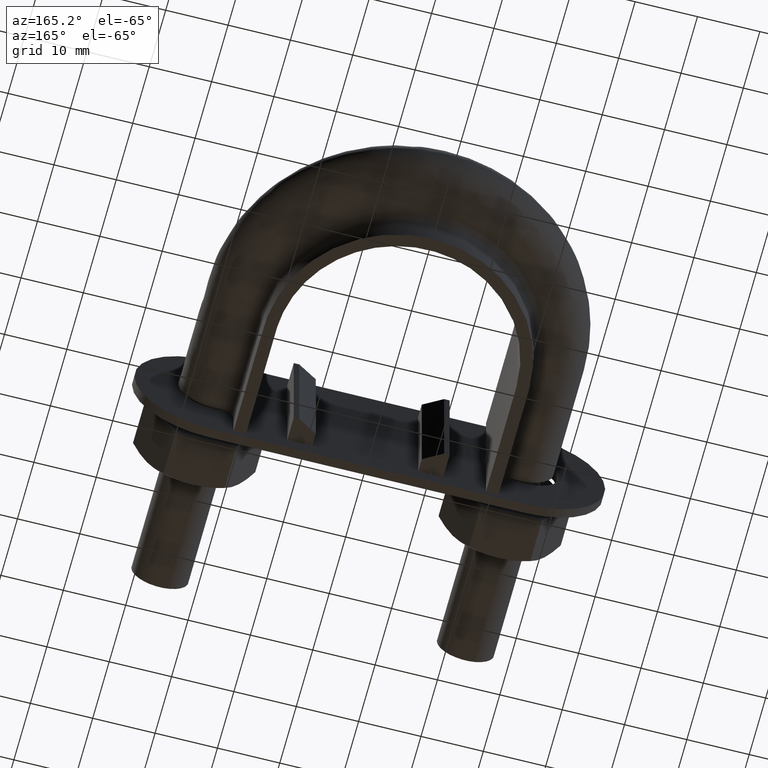
[diagram: clean part render]
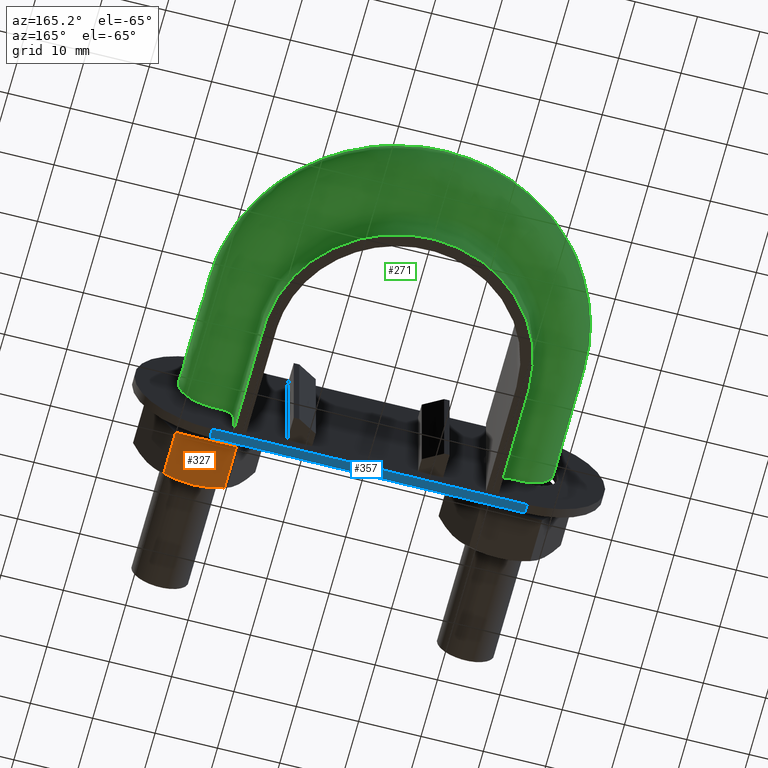
[diagram: same view with three faces highlighted in distinct colors, each labeled with its STEP entity id]
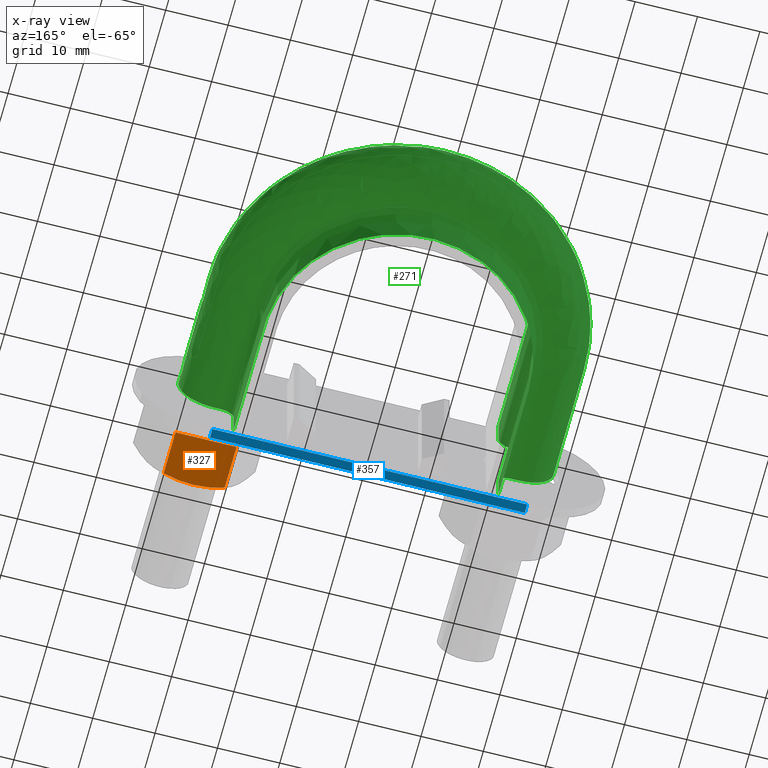
[diagram: x-ray of the same camera — body ghosted, the three highlighted faces saturated]
A machine part, auxiliary view with three faces highlighted in distinct colors.
The next image is the same camera in x-ray (body ghosted, the three faces saturated) — at least one of them is partly hidden behind the body in this view.
Their STEP definitions:

[orange] entity #327 — the highlighted planar face has unit normal (0, -0, 1).
#327 = ADVANCED_FACE( '', ( #514 ), #515, .F. );
#514 = FACE_OUTER_BOUND( '', #1442, .T. );
#515 = PLANE( '', #1443 );
#1442 = EDGE_LOOP( '', ( #1991, #1992, #1993, #1994, #1995 ) );
#1443 = AXIS2_PLACEMENT_3D( '', #1996, #1997, #1998 );
#1991 = ORIENTED_EDGE( '', *, *, #2510, .F. );
#1992 = ORIENTED_EDGE( '', *, *, #2515, .F. );
#1993 = ORIENTED_EDGE( '', *, *, #2509, .F. );
#1994 = ORIENTED_EDGE( '', *, *, #2506, .F. );
#1995 = ORIENTED_EDGE( '', *, *, #2516, .F. );
#1996 = CARTESIAN_POINT( '', ( 29.4074772205217, 28.0000000000000, -8.50000003902316 ) );
#1997 = DIRECTION( '', ( 7.95177762524801E-009, -3.06151590403154E-016, 1.00000000000000 ) );
#1998 = DIRECTION( '', ( 1.00000000000000, -2.44921268330026E-016, -7.95177762524801E-009 ) );
#2506 = EDGE_CURVE( '', #2828, #2810, #2830, .T. );
#2509 = EDGE_CURVE( '', #2810, #2831, #2835, .F. );
#2510 = EDGE_CURVE( '', #2788, #2836, #2837, .T. );
#2515 = EDGE_CURVE( '', #2831, #2788, #2843, .T. );
#2516 = EDGE_CURVE( '', #2836, #2828, #2844, .T. );
#2788 = VERTEX_POINT( '', #3452 );
#2810 = VERTEX_POINT( '', #3489 );
#2828 = VERTEX_POINT( '', #3511 );
#2830 = LINE( '', #3513, #3514 );
#2831 = VERTEX_POINT( '', #3515 );
#2835 = LINE( '', #3520, #3521 );
#2836 = VERTEX_POINT( '', #3522 );
#2837 = B_SPLINE_CURVE_WITH_KNOTS( '', 3, ( #3523, #3524, #3525, #3526, #3527, #3528, #3529, #3530 ), .UNSPECIFIED., .F., .F., ( 4, 2, 2, 4 ), ( 0.00493529902949373, 0.00616408349151779, 0.00739286795354185, 0.00985043687758998 ), .UNSPECIFIED. );
#2843 = B_SPLINE_CURVE_WITH_KNOTS( '', 3, ( #3547, #3548, #3549, #3550, #3551, #3552 ), .UNSPECIFIED., .F., .F., ( 4, 2, 4 ), ( 7.17194508352321E-007, 0.00246800811200104, 0.00493529902949373 ), .UNSPECIFIED. );
#2844 = LINE( '', #3553, #3554 );
#3452 = CARTESIAN_POINT( '', ( 24.4999999324099, 20.0000000000000, -8.49999999999999 ) );
#3489 = CARTESIAN_POINT( '', ( 19.6225005731070, 28.0000000000000, -8.49999996121520 ) );
#3511 = CARTESIAN_POINT( '', ( 29.3774992917128, 28.0000000000000, -8.50000003878478 ) );
#3513 = CARTESIAN_POINT( '', ( 29.3999999324099, 28.0000000000000, -8.50000003896370 ) );
#3514 = VECTOR( '', #4028, 1000.00000000000 );
#3515 = CARTESIAN_POINT( '', ( 19.6225005731070, 20.7505553499465, -8.49999996121521 ) );
#3520 = CARTESIAN_POINT( '', ( 19.6225005731070, 28.0000000000000, -8.49999996121520 ) );
#3521 = VECTOR( '', #4033, 1000.00000000000 );
#3522 = CARTESIAN_POINT( '', ( 29.3774992917128, 20.7505553499465, -8.50000003878479 ) );
#3523 = CARTESIAN_POINT( '', ( 24.4999999324099, 20.0000000000000, -8.49999999999999 ) );
#3524 = CARTESIAN_POINT( '', ( 24.9137095601608, 20.0000000000000, -8.50000000328972 ) );
#3525 = CARTESIAN_POINT( '', ( 25.3294867540124, 20.0177112141220, -8.50000000659589 ) );
#3526 = CARTESIAN_POINT( '', ( 26.1519989340675, 20.0863020976798, -8.50000001313632 ) );
#3527 = CARTESIAN_POINT( '', ( 26.5605210504067, 20.1371114863339, -8.50000001638480 ) );
#3528 = CARTESIAN_POINT( '', ( 27.7788676171906, 20.3331491064655, -8.50000002607282 ) );
#3529 = CARTESIAN_POINT( '', ( 28.5814990636172, 20.5218250443849, -8.50000003245516 ) );
#3530 = CARTESIAN_POINT( '', ( 29.3774992917128, 20.7505553499465, -8.50000003878478 ) );
#3547 = CARTESIAN_POINT( '', ( 19.6225005731070, 20.7505553499465, -8.49999996121520 ) );
#3548 = CARTESIAN_POINT( '', ( 20.4206041066511, 20.5212206605155, -8.49999996756155 ) );
#3549 = CARTESIAN_POINT( '', ( 21.2244722930367, 20.3324529479805, -8.49999997395373 ) );
#3550 = CARTESIAN_POINT( '', ( 22.8487632157738, 20.0714150925759, -8.49999998686973 ) );
#3551 = CARTESIAN_POINT( '', ( 23.6693074565726, 20.0000000000000, -8.49999999339451 ) );
#3552 = CARTESIAN_POINT( '', ( 24.4999999324099, 20.0000000000000, -8.49999999999999 ) );
#3553 = CARTESIAN_POINT( '', ( 29.3774992917128, 28.0000000000000, -8.50000003878478 ) );
#3554 = VECTOR( '', #4038, 1000.00000000000 );
#4028 = DIRECTION( '', ( -1.00000000000000, 2.44921268330026E-016, 7.95177762524801E-009 ) );
#4033 = DIRECTION( '', ( 2.44921270764476E-016, 1.00000000000000, 3.06151588455594E-016 ) );
#4038 = DIRECTION( '', ( 2.44921270764476E-016, 1.00000000000000, 3.06151588455594E-016 ) );

[blue] entity #357 — the highlighted planar face has unit normal (-0, -0, -1).
#357 = ADVANCED_FACE( '', ( #587 ), #588, .T. );
#587 = FACE_OUTER_BOUND( '', #1515, .T. );
#588 = PLANE( '', #1516 );
#1515 = EDGE_LOOP( '', ( #2225, #2226, #2227, #2228 ) );
#1516 = AXIS2_PLACEMENT_3D( '', #2229, #2230, #2231 );
#2225 = ORIENTED_EDGE( '', *, *, #2570, .F. );
#2226 = ORIENTED_EDGE( '', *, *, #2586, .F. );
#2227 = ORIENTED_EDGE( '', *, *, #2537, .T. );
#2228 = ORIENTED_EDGE( '', *, *, #2587, .T. );
#2229 = CARTESIAN_POINT( '', ( 24.4989999999999, 30.3000000000000, -12.5000000000003 ) );
#2230 = DIRECTION( '', ( -1.16573417585698E-014, -1.00538905774028E-016, -1.00000000000000 ) );
#2231 = DIRECTION( '', ( 1.00000000000000, -1.88900066577585E-016, -1.16573417585698E-014 ) );
#2537 = EDGE_CURVE( '', #2878, #2876, #2879, .T. );
#2570 = EDGE_CURVE( '', #2936, #2938, #2939, .T. );
#2586 = EDGE_CURVE( '', #2878, #2936, #2964, .T. );
#2587 = EDGE_CURVE( '', #2876, #2938, #2965, .T. );
#2876 = VERTEX_POINT( '', #3618 );
#2878 = VERTEX_POINT( '', #3620 );
#2879 = LINE( '', #3621, #3622 );
#2936 = VERTEX_POINT( '', #3703 );
#2938 = VERTEX_POINT( '', #3705 );
#2939 = LINE( '', #3706, #3707 );
#2964 = LINE( '', #3741, #3742 );
#2965 = LINE( '', #3743, #3744 );
#3618 = CARTESIAN_POINT( '', ( -26.0010000000002, 30.3000000000000, -12.4999999999997 ) );
#3620 = CARTESIAN_POINT( '', ( 24.4989999999999, 30.3000000000000, -12.5000000000003 ) );
#3621 = CARTESIAN_POINT( '', ( 24.4989999999999, 30.3000000000000, -12.5000000000003 ) );
#3622 = VECTOR( '', #4067, 1000.00000000000 );
#3703 = CARTESIAN_POINT( '', ( 24.4989999999999, 31.8000000000000, -12.5000000000003 ) );
#3705 = CARTESIAN_POINT( '', ( -26.0010000000002, 31.8000000000001, -12.4999999999997 ) );
#3706 = CARTESIAN_POINT( '', ( 24.4989999999999, 31.8000000000000, -12.5000000000003 ) );
#3707 = VECTOR( '', #4116, 1000.00000000000 );
#3741 = CARTESIAN_POINT( '', ( 24.4989999999999, 30.3000000000000, -12.5000000000003 ) );
#3742 = VECTOR( '', #4144, 1000.00000000000 );
#3743 = CARTESIAN_POINT( '', ( -26.0010000000002, 30.3000000000000, -12.4999999999997 ) );
#3744 = VECTOR( '', #4145, 1000.00000000000 );
#4067 = DIRECTION( '', ( -1.00000000000000, 1.88900066577585E-016, 1.16573417585698E-014 ) );
#4116 = DIRECTION( '', ( -1.00000000000000, 1.88900066577585E-016, 1.16573417585698E-014 ) );
#4144 = DIRECTION( '', ( 1.88900066577584E-016, 1.00000000000000, -1.00538905774030E-016 ) );
#4145 = DIRECTION( '', ( 1.88900066577584E-016, 1.00000000000000, -1.00538905774030E-016 ) );

[green] entity #271 — the highlighted face is a freeform B-spline surface patch.
#271 = ADVANCED_FACE( '', ( #388 ), #389, .F. );
#388 = FACE_OUTER_BOUND( '', #641, .T. );
#389 = B_SPLINE_SURFACE_WITH_KNOTS( '', 3, 3, ( ( #642, #643, #644, #645, #646, #647, #648, #649, #650, #651, #652, #653, #654, #655, #656, #657, #658 ), ( #659, #660, #661, #662, #663, #664, #665, #666, #667, #668, #669, #670, #671, #672, #673, #674, #675 ), ( #676, #677, #678, #679, #680, #681, #682, #683, #684, #685, #686, #687, #688, #689, #690, #691, #692 ), ( #693, #694, #695, #696, #697, #698, #699, #700, #701, #702, #703, #704, #705, #706, #707, #708, #709 ), ( #710, #711, #712, #713, #714, #715, #716, #717, #718, #719, #720, #721, #722, #723, #724, #725, #726 ), ( #727, #728, #729, #730, #731, #732, #733, #734, #735, #736, #737, #738, #739, #740, #741, #742, #743 ), ( #744, #745, #746, #747, #748, #749, #750, #751, #752, #753, #754, #755, #756, #757, #758, #759, #760 ), ( #761, #762, #763, #764, #765, #766, #767, #768, #769, #770, #771, #772, #773, #774, #775, #776, #777 ), ( #778, #779, #780, #781, #782, #783, #784, #785, #786, #787, #788, #789, #790, #791, #792, #793, #794 ), ( #795, #796, #797, #798, #799, #800, #801, #802, #803, #804, #805, #806, #807, #808, #809, #810, #811 ), ( #812, #813, #814, #815, #816, #817, #818, #819, #820, #821, #822, #823, #824, #825, #826, #827, #828 ), ( #829, #830, #831, #832, #833, #834, #835, #836, #837, #838, #839, #840, #841, #842, #843, #844, #845 ), ( #846, #847, #848, #849, #850, #851, #852, #853, #854, #855, #856, #857, #858, #859, #860, #861, #862 ), ( #863, #864, #865, #866, #867, #868, #869, #870, #871, #872, #873, #874, #875, #876, #877, #878, #879 ), ( #880, #881, #882, #883, #884, #885, #886, #887, #888, #889, #890, #891, #892, #893, #894, #895, #896 ), ( #897, #898, #899, #900, #901, #902, #903, #904, #905, #906, #907, #908, #909, #910, #911, #912, #913 ), ( #914, #915, #916, #917, #918, #919, #920, #921, #922, #923, #924, #925, #926, #927, #928, #929, #930 ), ( #931, #932, #933, #934, #935, #936, #937, #938, #939, #940, #941, #942, #943, #944, #945, #946, #947 ), ( #948, #949, #950, #951, #952, #953, #954, #955, #956, #957, #958, #959, #960, #961, #962, #963, #964 ), ( #965, #966, #967, #968, #969, #970, #971, #972, #973, #974, #975, #976, #977, #978, #979, #980, #981 ), ( #982, #983, #984, #985, #986, #987, #988, #989, #990, #991, #992, #993, #994, #995, #996, #997, #998 ), ( #999, #1000, #1001, #1002, #1003, #1004, #1005, #1006, #1007, #1008, #1009, #1010, #1011, #1012, #1013, #1014, #1015 ), ( #1016, #1017, #1018, #1019, #1020, #1021, #1022, #1023, #1024, #1025, #1026, #1027, #1028, #1029, #1030, #1031, #1032 ), ( #1033, #1034, #1035, #1036, #1037, #1038, #1039, #1040, #1041, #1042, #1043, #1044, #1045, #1046, #1047, #1048, #1049 ), ( #1050, #1051, #1052, #1053, #1054, #1055, #1056, #1057, #1058, #1059, #1060, #1061, #1062, #1063, #1064, #1065, #1066 ), ( #1067, #1068, #1069, #1070, #1071, #1072, #1073, #1074, #1075, #1076, #1077, #1078, #1079, #1080, #1081, #1082, #1083 ), ( #1084, #1085, #1086, #1087, #1088, #1089, #1090, #1091, #1092, #1093, #1094, #1095, #1096, #1097, #1098, #1099, #1100 ), ( #1101, #1102, #1103, #1104, #1105, #1106, #1107, #1108, #1109, #1110, #1111, #1112, #1113, #1114, #1115, #1116, #1117 ), ( #1118, #1119, #1120, #1121, #1122, #1123, #1124, #1125, #1126, #1127, #1128, #1129, #1130, #1131, #1132, #1133, #1134 ), ( #1135, #1136, #1137, #1138, #1139, #1140, #1141, #1142, #1143, #1144, #1145, #1146, #1147, #1148, #1149, #1150, #1151 ), ( #1152, #1153, #1154, #1155, #1156, #1157, #1158, #1159, #1160, #1161, #1162, #1163, #1164, #1165, #1166, #1167, #1168 ) ), .UNSPECIFIED., .F., .F., .F., ( 4, 3, 1, 1, 1, 3, 3, 1, 1, 1, 3, 3, 1, 1, 1, 3, 4 ), ( 4, 3, 1, 1, 1, 1, 1, 1, 1, 3, 4 ), ( 0.000000000000000, 0.0526315789473684, 0.105263157894737, 0.157894736842105, 0.210526315789474, 0.263157894736842, 0.315789473684211, 0.368421052631579, 0.421052631578947, 0.473684210526316, 0.526315789473684, 0.578947368421053, 0.631578947368421, 0.684210526315789, 0.736842105263158, 0.789473684210526, 0.842105263157895 ), ( 0.000000000000000, 1.00000000000000, 1.50000000000000, 2.00000000000000, 3.00000000000000, 4.00000000000000, 5.00000000000000, 6.00000000000000, 6.50000000000000, 7.00000000000000, 8.00000000000000 ), .UNSPECIFIED. );
#641 = EDGE_LOOP( '', ( #1603, #1604, #1605, #1606 ) );
#642 = CARTESIAN_POINT( '', ( -21.2500000000000, 29.1500000000000, 12.5000000000000 ) );
#643 = CARTESIAN_POINT( '', ( -21.2500000000000, 36.3500000000000, 12.5000000000000 ) );
#644 = CARTESIAN_POINT( '', ( -21.2500000000000, 43.5500000000000, 12.5000000000000 ) );
#645 = CARTESIAN_POINT( '', ( -21.2500000000000, 50.7500000000000, 12.5000000000000 ) );
#646 = CARTESIAN_POINT( '', ( -21.2500000000000, 52.5968276779905, 12.5000000000000 ) );
#647 = CARTESIAN_POINT( '', ( -20.7521371065633, 56.3135873922127, 12.5000000000000 ) );
#648 = CARTESIAN_POINT( '', ( -17.9070504639151, 63.2270199665254, 12.5000000000000 ) );
#649 = CARTESIAN_POINT( '', ( -11.1214577482373, 70.0138833402077, 12.5000000000000 ) );
#650 = CARTESIAN_POINT( '', ( 1.41429467295022E-014, 72.9930583298962, 12.5000000000000 ) );
#651 = CARTESIAN_POINT( '', ( 11.1214577482374, 70.0138833402077, 12.5000000000000 ) );
#652 = CARTESIAN_POINT( '', ( 17.9070504639151, 63.2270199665254, 12.5000000000000 ) );
#653 = CARTESIAN_POINT( '', ( 20.7521371065634, 56.3135873922127, 12.5000000000000 ) );
#654 = CARTESIAN_POINT( '', ( 21.2500000000000, 52.5968276779905, 12.5000000000000 ) );
#655 = CARTESIAN_POINT( '', ( 21.2500000000000, 50.7500000000000, 12.5000000000000 ) );
#656 = CARTESIAN_POINT( '', ( 21.2500000000000, 43.5500000000000, 12.5000000000000 ) );
#657 = CARTESIAN_POINT( '', ( 21.2500000000000, 36.3500000000000, 12.5000000000000 ) );
#658 = CARTESIAN_POINT( '', ( 21.2500000000000, 29.1500000000000, 12.5000000000000 ) );
#659 = CARTESIAN_POINT( '', ( -21.2500000000000, 29.1500000000000, 10.8666666666667 ) );
#660 = CARTESIAN_POINT( '', ( -21.2500000000000, 36.3500000000000, 10.8666666666667 ) );
#661 = CARTESIAN_POINT( '', ( -21.2500000000000, 43.5500000000000, 10.8666666666667 ) );
#662 = CARTESIAN_POINT( '', ( -21.2500000000000, 50.7500000000000, 10.8666666666667 ) );
#663 = CARTESIAN_POINT( '', ( -21.2500000000000, 52.5968276779905, 10.8666666666667 ) );
#664 = CARTESIAN_POINT( '', ( -20.7521371065633, 56.3135873922127, 10.8666666666667 ) );
#665 = CARTESIAN_POINT( '', ( -17.9070504639151, 63.2270199665254, 10.8666666666667 ) );
#666 = CARTESIAN_POINT( '', ( -11.1214577482373, 70.0138833402077, 10.8666666666667 ) );
#667 = CARTESIAN_POINT( '', ( 1.41429467295022E-014, 72.9930583298962, 10.8666666666667 ) );
#668 = CARTESIAN_POINT( '', ( 11.1214577482374, 70.0138833402077, 10.8666666666667 ) );
#669 = CARTESIAN_POINT( '', ( 17.9070504639151, 63.2270199665254, 10.8666666666667 ) );
#670 = CARTESIAN_POINT( '', ( 20.7521371065634, 56.3135873922127, 10.8666666666667 ) );
#671 = CARTESIAN_POINT( '', ( 21.2500000000000, 52.5968276779905, 10.8666666666667 ) );
#672 = CARTESIAN_POINT( '', ( 21.2500000000000, 50.7500000000000, 10.8666666666667 ) );
#673 = CARTESIAN_POINT( '', ( 21.2500000000000, 43.5500000000000, 10.8666666666667 ) );
#674 = CARTESIAN_POINT( '', ( 21.2500000000000, 36.3500000000000, 10.8666666666667 ) );
#675 = CARTESIAN_POINT( '', ( 21.2500000000000, 29.1500000000000, 10.8666666666667 ) );
#676 = CARTESIAN_POINT( '', ( -21.2500000000000, 29.1500000000000, 9.23333333333333 ) );
#677 = CARTESIAN_POINT( '', ( -21.2500000000000, 36.3500000000000, 9.23333333333333 ) );
#678 = CARTESIAN_POINT( '', ( -21.2500000000000, 43.5500000000000, 9.23333333333333 ) );
#679 = CARTESIAN_POINT( '', ( -21.2500000000000, 50.7500000000000, 9.23333333333333 ) );
#680 = CARTESIAN_POINT( '', ( -21.2500000000000, 52.5968276779905, 9.23333333333333 ) );
#681 = CARTESIAN_POINT( '', ( -20.7521371065633, 56.3135873922127, 9.23333333333334 ) );
#682 = CARTESIAN_POINT( '', ( -17.9070504639151, 63.2270199665254, 9.23333333333333 ) );
#683 = CARTESIAN_POINT( '', ( -11.1214577482373, 70.0138833402077, 9.23333333333333 ) );
#684 = CARTESIAN_POINT( '', ( 1.50103084674907E-014, 72.9930583298962, 9.23333333333333 ) );
#685 = CARTESIAN_POINT( '', ( 11.1214577482374, 70.0138833402077, 9.23333333333333 ) );
#686 = CARTESIAN_POINT( '', ( 17.9070504639151, 63.2270199665254, 9.23333333333333 ) );
#687 = CARTESIAN_POINT( '', ( 20.7521371065634, 56.3135873922127, 9.23333333333334 ) );
#688 = CARTESIAN_POINT( '', ( 21.2500000000000, 52.5968276779905, 9.23333333333333 ) );
#689 = CARTESIAN_POINT( '', ( 21.2500000000000, 50.7500000000000, 9.23333333333333 ) );
#690 = CARTESIAN_POINT( '', ( 21.2500000000000, 43.5500000000000, 9.23333333333333 ) );
#691 = CARTESIAN_POINT( '', ( 21.2500000000000, 36.3500000000000, 9.23333333333333 ) );
#692 = CARTESIAN_POINT( '', ( 21.2500000000000, 29.1500000000000, 9.23333333333333 ) );
#693 = CARTESIAN_POINT( '', ( -21.2500000000000, 29.1500000000000, 7.60000000000000 ) );
#694 = CARTESIAN_POINT( '', ( -21.2500000000000, 36.3500000000000, 7.60000000000000 ) );
#695 = CARTESIAN_POINT( '', ( -21.2500000000000, 43.5500000000000, 7.59999999999999 ) );
#696 = CARTESIAN_POINT( '', ( -21.2500000000000, 50.7500000000000, 7.59999999999999 ) );
#697 = CARTESIAN_POINT( '', ( -21.2500000000000, 52.5968276779905, 7.60000000000000 ) );
#698 = CARTESIAN_POINT( '', ( -20.7521371065633, 56.3135873922127, 7.60000000000000 ) );
#699 = CARTESIAN_POINT( '', ( -17.9070504639151, 63.2270199665254, 7.59999999999999 ) );
#700 = CARTESIAN_POINT( '', ( -11.1214577482373, 70.0138833402077, 7.60000000000000 ) );
#701 = CARTESIAN_POINT( '', ( 1.45766275984965E-014, 72.9930583298962, 7.59999999999999 ) );
#702 = CARTESIAN_POINT( '', ( 11.1214577482374, 70.0138833402077, 7.60000000000000 ) );
#703 = CARTESIAN_POINT( '', ( 17.9070504639151, 63.2270199665254, 7.59999999999999 ) );
#704 = CARTESIAN_POINT( '', ( 20.7521371065634, 56.3135873922127, 7.60000000000000 ) );
#705 = CARTESIAN_POINT( '', ( 21.2500000000000, 52.5968276779905, 7.60000000000000 ) );
#706 = CARTESIAN_POINT( '', ( 21.2500000000000, 50.7500000000000, 7.60000000000000 ) );
#707 = CARTESIAN_POINT( '', ( 21.2500000000000, 43.5500000000000, 7.59999999999999 ) );
#708 = CARTESIAN_POINT( '', ( 21.2500000000000, 36.3500000000000, 7.60000000000000 ) );
#709 = CARTESIAN_POINT( '', ( 21.2500000000000, 29.1500000000000, 7.60000000000000 ) );
#710 = CARTESIAN_POINT( '', ( -21.2500000000000, 29.1500000000000, 7.33823584172333 ) );
#711 = CARTESIAN_POINT( '', ( -21.2500000000000, 36.3500000000000, 7.33823584172333 ) );
#712 = CARTESIAN_POINT( '', ( -21.2500000000000, 43.5500000000000, 7.33823584172332 ) );
#713 = CARTESIAN_POINT( '', ( -21.2500000000000, 50.7500000000000, 7.33823584172332 ) );
#714 = CARTESIAN_POINT( '', ( -21.2500000000000, 52.5968276779905, 7.33823584172333 ) );
#715 = CARTESIAN_POINT( '', ( -20.7521371065633, 56.3135873922127, 7.33823584172333 ) );
#716 = CARTESIAN_POINT( '', ( -17.9070504639151, 63.2270199665254, 7.33823584172332 ) );
#717 = CARTESIAN_POINT( '', ( -11.1214577482373, 70.0138833402077, 7.33823584172333 ) );
#718 = CARTESIAN_POINT( '', ( 1.37092658605080E-014, 72.9930583298962, 7.33823584172332 ) );
#719 = CARTESIAN_POINT( '', ( 11.1214577482374, 70.0138833402077, 7.33823584172332 ) );
#720 = CARTESIAN_POINT( '', ( 17.9070504639151, 63.2270199665254, 7.33823584172332 ) );
#721 = CARTESIAN_POINT( '', ( 20.7521371065634, 56.3135873922127, 7.33823584172333 ) );
#722 = CARTESIAN_POINT( '', ( 21.2500000000000, 52.5968276779905, 7.33823584172333 ) );
#723 = CARTESIAN_POINT( '', ( 21.2500000000000, 50.7500000000000, 7.33823584172333 ) );
#724 = CARTESIAN_POINT( '', ( 21.2500000000000, 43.5500000000000, 7.33823584172332 ) );
#725 = CARTESIAN_POINT( '', ( 21.2500000000000, 36.3500000000000, 7.33823584172333 ) );
#726 = CARTESIAN_POINT( '', ( 21.2500000000000, 29.1500000000000, 7.33823584172333 ) );
#727 = CARTESIAN_POINT( '', ( -21.3541362568359, 29.1500000000000, 6.81470752517000 ) );
#728 = CARTESIAN_POINT( '', ( -21.3541362568359, 36.3500000000000, 6.81470752517000 ) );
#729 = CARTESIAN_POINT( '', ( -21.3541362568359, 43.5500000000000, 6.81470752517000 ) );
#730 = CARTESIAN_POINT( '', ( -21.3541362568359, 50.7500000000000, 6.81470752517000 ) );
#731 = CARTESIAN_POINT( '', ( -21.3541362568359, 52.6061287532978, 6.81470752517000 ) );
#732 = CARTESIAN_POINT( '', ( -20.8538774949210, 56.3407503100166, 6.81470752517001 ) );
#733 = CARTESIAN_POINT( '', ( -17.9947792079020, 63.2882227993299, 6.81470752517000 ) );
#734 = CARTESIAN_POINT( '', ( -11.1759667686909, 70.1082651822169, 6.81470752517000 ) );
#735 = CARTESIAN_POINT( '', ( 1.37226157186052E-014, 73.1020717941455, 6.81470752517000 ) );
#736 = CARTESIAN_POINT( '', ( 11.1759667686909, 70.1082651822169, 6.81470752517000 ) );
#737 = CARTESIAN_POINT( '', ( 17.9947792079020, 63.2882227993299, 6.81470752517000 ) );
#738 = CARTESIAN_POINT( '', ( 20.8538774949210, 56.3407503100166, 6.81470752517001 ) );
#739 = CARTESIAN_POINT( '', ( 21.3541362568359, 52.6061287532978, 6.81470752517000 ) );
#740 = CARTESIAN_POINT( '', ( 21.3541362568359, 50.7500000000000, 6.81470752517000 ) );
#741 = CARTESIAN_POINT( '', ( 21.3541362568359, 43.5500000000000, 6.81470752517000 ) );
#742 = CARTESIAN_POINT( '', ( 21.3541362568359, 36.3500000000000, 6.81470752517000 ) );
#743 = CARTESIAN_POINT( '', ( 21.3541362568359, 29.1500000000000, 6.81470752517000 ) );
#744 = CARTESIAN_POINT( '', ( -21.7989687109389, 29.1500000000000, 6.14896871093887 ) );
#745 = CARTESIAN_POINT( '', ( -21.7989687109389, 36.3500000000000, 6.14896871093887 ) );
#746 = CARTESIAN_POINT( '', ( -21.7989687109389, 43.5500000000000, 6.14896871093887 ) );
#747 = CARTESIAN_POINT( '', ( -21.7989687109389, 50.7500000000000, 6.14896871093887 ) );
#748 = CARTESIAN_POINT( '', ( -21.7989687109389, 52.6458595855792, 6.14896871093887 ) );
#749 = CARTESIAN_POINT( '', ( -21.2884756647577, 56.4567804781293, 6.14896871093887 ) );
#750 = CARTESIAN_POINT( '', ( -18.3695246968295, 63.5496591822162, 6.14896871093886 ) );
#751 = CARTESIAN_POINT( '', ( -11.4088096043740, 70.5114303014495, 6.14896871093887 ) );
#752 = CARTESIAN_POINT( '', ( 1.42133223567190E-014, 73.5677379156836, 6.14896871093886 ) );
#753 = CARTESIAN_POINT( '', ( 11.4088096043740, 70.5114303014496, 6.14896871093887 ) );
#754 = CARTESIAN_POINT( '', ( 18.3695246968295, 63.5496591822162, 6.14896871093887 ) );
#755 = CARTESIAN_POINT( '', ( 21.2884756647577, 56.4567804781293, 6.14896871093887 ) );
#756 = CARTESIAN_POINT( '', ( 21.7989687109389, 52.6458595855792, 6.14896871093887 ) );
#757 = CARTESIAN_POINT( '', ( 21.7989687109389, 50.7500000000000, 6.14896871093887 ) );
#758 = CARTESIAN_POINT( '', ( 21.7989687109389, 43.5500000000000, 6.14896871093887 ) );
#759 = CARTESIAN_POINT( '', ( 21.7989687109389, 36.3500000000000, 6.14896871093887 ) );
#760 = CARTESIAN_POINT( '', ( 21.7989687109389, 29.1500000000000, 6.14896871093887 ) );
#761 = CARTESIAN_POINT( '', ( -22.4647075251700, 29.1500000000000, 5.70413625683590 ) );
#762 = CARTESIAN_POINT( '', ( -22.4647075251700, 36.3500000000000, 5.70413625683590 ) );
#763 = CARTESIAN_POINT( '', ( -22.4647075251700, 43.5500000000000, 5.70413625683590 ) );
#764 = CARTESIAN_POINT( '', ( -22.4647075251700, 50.7500000000000, 5.70413625683590 ) );
#765 = CARTESIAN_POINT( '', ( -22.4647075251700, 52.7053209781269, 5.70413625683590 ) );
#766 = CARTESIAN_POINT( '', ( -21.9388977901791, 56.6304318963698, 5.70413625683590 ) );
#767 = CARTESIAN_POINT( '', ( -18.9303709550913, 63.9409263794142, 5.70413625683590 ) );
#768 = CARTESIAN_POINT( '', ( -11.7572835340527, 71.1148095421988, 5.70413625683590 ) );
#769 = CARTESIAN_POINT( '', ( 1.21302631064327E-014, 74.2646565166556, 5.70413625683590 ) );
#770 = CARTESIAN_POINT( '', ( 11.7572835340528, 71.1148095421988, 5.70413625683590 ) );
#771 = CARTESIAN_POINT( '', ( 18.9303709550913, 63.9409263794142, 5.70413625683590 ) );
#772 = CARTESIAN_POINT( '', ( 21.9388977901791, 56.6304318963698, 5.70413625683590 ) );
#773 = CARTESIAN_POINT( '', ( 22.4647075251700, 52.7053209781269, 5.70413625683590 ) );
#774 = CARTESIAN_POINT( '', ( 22.4647075251700, 50.7500000000000, 5.70413625683590 ) );
#775 = CARTESIAN_POINT( '', ( 22.4647075251700, 43.5500000000000, 5.70413625683590 ) );
#776 = CARTESIAN_POINT( '', ( 22.4647075251700, 36.3500000000000, 5.70413625683590 ) );
#777 = CARTESIAN_POINT( '', ( 22.4647075251700, 29.1500000000000, 5.70413625683590 ) );
#778 = CARTESIAN_POINT( '', ( -22.9882358417233, 29.1500000000000, 5.59999999999999 ) );
#779 = CARTESIAN_POINT( '', ( -22.9882358417233, 36.3500000000000, 5.59999999999999 ) );
#780 = CARTESIAN_POINT( '', ( -22.9882358417233, 43.5500000000000, 5.59999999999999 ) );
#781 = CARTESIAN_POINT( '', ( -22.9882358417233, 50.7500000000000, 5.59999999999999 ) );
#782 = CARTESIAN_POINT( '', ( -22.9882358417233, 52.7520806413387, 5.59999999999999 ) );
#783 = CARTESIAN_POINT( '', ( -22.4503812625138, 56.7669891057666, 5.60000000000000 ) );
#784 = CARTESIAN_POINT( '', ( -19.3714131343311, 64.2486137978023, 5.59999999999999 ) );
#785 = CARTESIAN_POINT( '', ( -12.0313188852560, 71.5892991038710, 5.59999999999999 ) );
#786 = CARTESIAN_POINT( '', ( 1.34984199822416E-014, 74.8127042106495, 5.59999999999999 ) );
#787 = CARTESIAN_POINT( '', ( 12.0313188852560, 71.5892991038710, 5.59999999999999 ) );
#788 = CARTESIAN_POINT( '', ( 19.3714131343312, 64.2486137978023, 5.59999999999999 ) );
#789 = CARTESIAN_POINT( '', ( 22.4503812625138, 56.7669891057665, 5.60000000000000 ) );
#790 = CARTESIAN_POINT( '', ( 22.9882358417234, 52.7520806413387, 5.59999999999999 ) );
#791 = CARTESIAN_POINT( '', ( 22.9882358417234, 50.7500000000000, 5.59999999999999 ) );
#792 = CARTESIAN_POINT( '', ( 22.9882358417233, 43.5500000000000, 5.59999999999999 ) );
#793 = CARTESIAN_POINT( '', ( 22.9882358417233, 36.3500000000000, 5.59999999999999 ) );
#794 = CARTESIAN_POINT( '', ( 22.9882358417233, 29.1500000000000, 5.59999999999999 ) );
#795 = CARTESIAN_POINT( '', ( -23.2500000000000, 29.1500000000000, 5.59999999999999 ) );
#796 = CARTESIAN_POINT( '', ( -23.2500000000000, 36.3500000000000, 5.59999999999999 ) );
#797 = CARTESIAN_POINT( '', ( -23.2500000000000, 43.5500000000000, 5.59999999999999 ) );
#798 = CARTESIAN_POINT( '', ( -23.2500000000000, 50.7500000000000, 5.59999999999999 ) );
#799 = CARTESIAN_POINT( '', ( -23.2500000000000, 52.7754604729446, 5.59999999999999 ) );
#800 = CARTESIAN_POINT( '', ( -22.7061229986812, 56.8352677104650, 5.60000000000000 ) );
#801 = CARTESIAN_POINT( '', ( -19.5919342239511, 64.4024575069964, 5.59999999999999 ) );
#802 = CARTESIAN_POINT( '', ( -12.1683365608576, 71.8265438847071, 5.59999999999999 ) );
#803 = CARTESIAN_POINT( '', ( 1.30982962476605E-014, 75.0867280576465, 5.59999999999999 ) );
#804 = CARTESIAN_POINT( '', ( 12.1683365608576, 71.8265438847071, 5.59999999999999 ) );
#805 = CARTESIAN_POINT( '', ( 19.5919342239511, 64.4024575069964, 5.59999999999999 ) );
#806 = CARTESIAN_POINT( '', ( 22.7061229986812, 56.8352677104649, 5.60000000000000 ) );
#807 = CARTESIAN_POINT( '', ( 23.2500000000000, 52.7754604729446, 5.59999999999999 ) );
#808 = CARTESIAN_POINT( '', ( 23.2500000000000, 50.7500000000000, 5.59999999999999 ) );
#809 = CARTESIAN_POINT( '', ( 23.2500000000000, 43.5500000000000, 5.59999999999999 ) );
#810 = CARTESIAN_POINT( '', ( 23.2500000000000, 36.3500000000000, 5.59999999999999 ) );
#811 = CARTESIAN_POINT( '', ( 23.2500000000000, 29.1500000000000, 5.59999999999999 ) );
#812 = CARTESIAN_POINT( '', ( -23.6666666666667, 29.1500000000000, 5.60000000000001 ) );
#813 = CARTESIAN_POINT( '', ( -23.6666666666667, 36.3500000000000, 5.60000000000001 ) );
#814 = CARTESIAN_POINT( '', ( -23.6666666666667, 43.5500000000000, 5.60000000000001 ) );
#815 = CARTESIAN_POINT( '', ( -23.6666666666667, 50.7500000000000, 5.60000000000001 ) );
#816 = CARTESIAN_POINT( '', ( -23.6666666666667, 52.8126756385600, 5.60000000000001 ) );
#817 = CARTESIAN_POINT( '', ( -23.1132033928724, 56.9439511101008, 5.60000000000001 ) );
#818 = CARTESIAN_POINT( '', ( -19.9429516739586, 64.6473403279279, 5.60000000000000 ) );
#819 = CARTESIAN_POINT( '', ( -12.3864363134868, 72.2041814981445, 5.60000000000001 ) );
#820 = CARTESIAN_POINT( '', ( 1.48864347497083E-014, 75.5229092509278, 5.60000000000000 ) );
#821 = CARTESIAN_POINT( '', ( 12.3864363134868, 72.2041814981445, 5.60000000000001 ) );
#822 = CARTESIAN_POINT( '', ( 19.9429516739586, 64.6473403279279, 5.60000000000001 ) );
#823 = CARTESIAN_POINT( '', ( 23.1132033928724, 56.9439511101008, 5.60000000000001 ) );
#824 = CARTESIAN_POINT( '', ( 23.6666666666667, 52.8126756385600, 5.60000000000001 ) );
#825 = CARTESIAN_POINT( '', ( 23.6666666666667, 50.7500000000000, 5.60000000000001 ) );
#826 = CARTESIAN_POINT( '', ( 23.6666666666667, 43.5500000000000, 5.60000000000001 ) );
#827 = CARTESIAN_POINT( '', ( 23.6666666666667, 36.3500000000000, 5.60000000000001 ) );
#828 = CARTESIAN_POINT( '', ( 23.6666666666667, 29.1500000000000, 5.60000000000001 ) );
#829 = CARTESIAN_POINT( '', ( -24.0833333333333, 29.1500000000000, 5.60000000000001 ) );
#830 = CARTESIAN_POINT( '', ( -24.0833333333333, 36.3500000000000, 5.60000000000001 ) );
#831 = CARTESIAN_POINT( '', ( -24.0833333333333, 43.5500000000000, 5.60000000000001 ) );
#832 = CARTESIAN_POINT( '', ( -24.0833333333333, 50.7500000000000, 5.60000000000001 ) );
#833 = CARTESIAN_POINT( '', ( -24.0833333333333, 52.8498908041754, 5.60000000000001 ) );
#834 = CARTESIAN_POINT( '', ( -23.5202837870636, 57.0526345097367, 5.60000000000001 ) );
#835 = CARTESIAN_POINT( '', ( -20.2939691239661, 64.8922231488594, 5.60000000000000 ) );
#836 = CARTESIAN_POINT( '', ( -12.6045360661160, 72.5818191115819, 5.60000000000001 ) );
#837 = CARTESIAN_POINT( '', ( 1.49398497757793E-014, 75.9590904442091, 5.60000000000000 ) );
#838 = CARTESIAN_POINT( '', ( 12.6045360661160, 72.5818191115819, 5.60000000000001 ) );
#839 = CARTESIAN_POINT( '', ( 20.2939691239661, 64.8922231488594, 5.60000000000001 ) );
#840 = CARTESIAN_POINT( '', ( 23.5202837870636, 57.0526345097367, 5.60000000000001 ) );
#841 = CARTESIAN_POINT( '', ( 24.0833333333334, 52.8498908041754, 5.60000000000001 ) );
#842 = CARTESIAN_POINT( '', ( 24.0833333333334, 50.7500000000000, 5.60000000000001 ) );
#843 = CARTESIAN_POINT( '', ( 24.0833333333334, 43.5500000000000, 5.60000000000001 ) );
#844 = CARTESIAN_POINT( '', ( 24.0833333333334, 36.3500000000000, 5.60000000000001 ) );
#845 = CARTESIAN_POINT( '', ( 24.0833333333334, 29.1500000000000, 5.60000000000001 ) );
#846 = CARTESIAN_POINT( '', ( -24.5000000000000, 29.1500000000000, 5.60000000000001 ) );
#847 = CARTESIAN_POINT( '', ( -24.5000000000000, 36.3500000000000, 5.60000000000001 ) );
#848 = CARTESIAN_POINT( '', ( -24.5000000000000, 43.5500000000000, 5.60000000000001 ) );
#849 = CARTESIAN_POINT( '', ( -24.5000000000000, 50.7500000000000, 5.60000000000001 ) );
#850 = CARTESIAN_POINT( '', ( -24.5000000000000, 52.8871059697909, 5.60000000000001 ) );
#851 = CARTESIAN_POINT( '', ( -23.9273641812548, 57.1613179093726, 5.60000000000001 ) );
#852 = CARTESIAN_POINT( '', ( -20.6449865739735, 65.1371059697909, 5.60000000000000 ) );
#853 = CARTESIAN_POINT( '', ( -12.8226358187452, 72.9594567250192, 5.60000000000001 ) );
#854 = CARTESIAN_POINT( '', ( 1.45595839328561E-014, 76.3952716374904, 5.60000000000000 ) );
#855 = CARTESIAN_POINT( '', ( 12.8226358187452, 72.9594567250192, 5.60000000000001 ) );
#856 = CARTESIAN_POINT( '', ( 20.6449865739736, 65.1371059697909, 5.60000000000001 ) );
#857 = CARTESIAN_POINT( '', ( 23.9273641812548, 57.1613179093726, 5.60000000000001 ) );
#858 = CARTESIAN_POINT( '', ( 24.5000000000000, 52.8871059697909, 5.60000000000001 ) );
#859 = CARTESIAN_POINT( '', ( 24.5000000000000, 50.7500000000000, 5.60000000000001 ) );
#860 = CARTESIAN_POINT( '', ( 24.5000000000000, 43.5500000000000, 5.60000000000001 ) );
#861 = CARTESIAN_POINT( '', ( 24.5000000000000, 36.3500000000000, 5.60000000000001 ) );
#862 = CARTESIAN_POINT( '', ( 24.5000000000000, 29.1500000000000, 5.60000000000001 ) );
#863 = CARTESIAN_POINT( '', ( -25.9627416997969, 29.1500000000000, 5.60000000000001 ) );
#864 = CARTESIAN_POINT( '', ( -25.9627416997969, 36.3500000000000, 5.60000000000001 ) );
#865 = CARTESIAN_POINT( '', ( -25.9627416997969, 43.5500000000000, 5.60000000000001 ) );
#866 = CARTESIAN_POINT( '', ( -25.9627416997969, 50.7500000000000, 5.60000000000001 ) );
#867 = CARTESIAN_POINT( '', ( -25.9627416997969, 53.0177527888562, 5.60000000000001 ) );
#868 = CARTESIAN_POINT( '', ( -25.3564525038626, 57.5428596871080, 5.60000000000002 ) );
#869 = CARTESIAN_POINT( '', ( -21.8772614415312, 65.9967867227677, 5.60000000000001 ) );
#870 = CARTESIAN_POINT( '', ( -13.5882924656719, 74.2851838080272, 5.60000000000001 ) );
#871 = CARTESIAN_POINT( '', ( 1.38797399213393E-014, 77.9265206456818, 5.60000000000001 ) );
#872 = CARTESIAN_POINT( '', ( 13.5882924656720, 74.2851838080272, 5.60000000000001 ) );
#873 = CARTESIAN_POINT( '', ( 21.8772614415312, 65.9967867227677, 5.60000000000001 ) );
#874 = CARTESIAN_POINT( '', ( 25.3564525038627, 57.5428596871080, 5.60000000000002 ) );
#875 = CARTESIAN_POINT( '', ( 25.9627416997970, 53.0177527888562, 5.60000000000001 ) );
#876 = CARTESIAN_POINT( '', ( 25.9627416997970, 50.7500000000000, 5.60000000000001 ) );
#877 = CARTESIAN_POINT( '', ( 25.9627416997970, 43.5500000000000, 5.60000000000001 ) );
#878 = CARTESIAN_POINT( '', ( 25.9627416997970, 36.3500000000000, 5.60000000000001 ) );
#879 = CARTESIAN_POINT( '', ( 25.9627416997970, 29.1500000000000, 5.60000000000001 ) );
#880 = CARTESIAN_POINT( '', ( -28.8882250993908, 29.1500000000000, 4.38822509939087 ) );
#881 = CARTESIAN_POINT( '', ( -28.8882250993908, 36.3500000000000, 4.38822509939087 ) );
#882 = CARTESIAN_POINT( '', ( -28.8882250993908, 43.5500000000000, 4.38822509939087 ) );
#883 = CARTESIAN_POINT( '', ( -28.8882250993908, 50.7500000000000, 4.38822509939087 ) );
#884 = CARTESIAN_POINT( '', ( -28.8882250993908, 53.2790464269868, 4.38822509939087 ) );
#885 = CARTESIAN_POINT( '', ( -28.2146291490783, 58.3059432425789, 4.38822509939088 ) );
#886 = CARTESIAN_POINT( '', ( -24.3418111766465, 67.7161482287215, 4.38822509939087 ) );
#887 = CARTESIAN_POINT( '', ( -15.1196057595255, 76.9366379740431, 4.38822509939087 ) );
#888 = CARTESIAN_POINT( '', ( 1.59894988502592E-014, 80.9890186620648, 4.38822509939087 ) );
#889 = CARTESIAN_POINT( '', ( 15.1196057595255, 76.9366379740431, 4.38822509939087 ) );
#890 = CARTESIAN_POINT( '', ( 24.3418111766465, 67.7161482287215, 4.38822509939087 ) );
#891 = CARTESIAN_POINT( '', ( 28.2146291490784, 58.3059432425789, 4.38822509939087 ) );
#892 = CARTESIAN_POINT( '', ( 28.8882250993909, 53.2790464269868, 4.38822509939087 ) );
#893 = CARTESIAN_POINT( '', ( 28.8882250993909, 50.7500000000000, 4.38822509939087 ) );
#894 = CARTESIAN_POINT( '', ( 28.8882250993909, 43.5500000000000, 4.38822509939087 ) );
#895 = CARTESIAN_POINT( '', ( 28.8882250993909, 36.3500000000000, 4.38822509939087 ) );
#896 = CARTESIAN_POINT( '', ( 28.8882250993909, 29.1500000000000, 4.38822509939087 ) );
#897 = CARTESIAN_POINT( '', ( -30.7058874503046, 29.1500000000000, 9.94452457394279E-015 ) );
#898 = CARTESIAN_POINT( '', ( -30.7058874503046, 36.3500000000000, 9.94452457394279E-015 ) );
#899 = CARTESIAN_POINT( '', ( -30.7058874503046, 43.5500000000000, 9.94452457394278E-015 ) );
#900 = CARTESIAN_POINT( '', ( -30.7058874503046, 50.7500000000000, 9.94452457394278E-015 ) );
#901 = CARTESIAN_POINT( '', ( -30.7058874503046, 53.4413934800001, 9.94452457394279E-015 ) );
#902 = CARTESIAN_POINT( '', ( -29.9904724442379, 58.7800625794288, 9.94452457394280E-015 ) );
#903 = CARTESIAN_POINT( '', ( -25.8730860647882, 68.7844225103040, 9.94452457394278E-015 ) );
#904 = CARTESIAN_POINT( '', ( -16.0710418613600, 78.5840403874047, 9.94452457394279E-015 ) );
#905 = CARTESIAN_POINT( '', ( 1.70898777447172E-014, 82.8918109817545, 9.94452457394278E-015 ) );
#906 = CARTESIAN_POINT( '', ( 16.0710418613600, 78.5840403874048, 9.94452457394279E-015 ) );
#907 = CARTESIAN_POINT( '', ( 25.8730860647882, 68.7844225103039, 9.94452457394278E-015 ) );
#908 = CARTESIAN_POINT( '', ( 29.9904724442379, 58.7800625794288, 9.94452457394279E-015 ) );
#909 = CARTESIAN_POINT( '', ( 30.7058874503046, 53.4413934800000, 9.94452457394279E-015 ) );
#910 = CARTESIAN_POINT( '', ( 30.7058874503046, 50.7500000000000, 9.94452457394279E-015 ) );
#911 = CARTESIAN_POINT( '', ( 30.7058874503046, 43.5500000000000, 9.94452457394278E-015 ) );
#912 = CARTESIAN_POINT( '', ( 30.7058874503046, 36.3500000000000, 9.94452457394279E-015 ) );
#913 = CARTESIAN_POINT( '', ( 30.7058874503046, 29.1500000000000, 9.94452457394279E-015 ) );
#914 = CARTESIAN_POINT( '', ( -28.8882250993909, 29.1500000000000, -4.38822509939085 ) );
#915 = CARTESIAN_POINT( '', ( -28.8882250993909, 36.3500000000000, -4.38822509939085 ) );
#916 = CARTESIAN_POINT( '', ( -28.8882250993909, 43.5500000000000, -4.38822509939085 ) );
#917 = CARTESIAN_POINT( '', ( -28.8882250993909, 50.7500000000000, -4.38822509939085 ) );
#918 = CARTESIAN_POINT( '', ( -28.8882250993909, 53.2790464269868, -4.38822509939085 ) );
#919 = CARTESIAN_POINT( '', ( -28.2146291490783, 58.3059432425789, -4.38822509939085 ) );
#920 = CARTESIAN_POINT( '', ( -24.3418111766465, 67.7161482287216, -4.38822509939085 ) );
#921 = CARTESIAN_POINT( '', ( -15.1196057595255, 76.9366379740431, -4.38822509939085 ) );
#922 = CARTESIAN_POINT( '', ( 2.03263075402012E-014, 80.9890186620648, -4.38822509939085 ) );
#923 = CARTESIAN_POINT( '', ( 15.1196057595255, 76.9366379740431, -4.38822509939085 ) );
#924 = CARTESIAN_POINT( '', ( 24.3418111766465, 67.7161482287215, -4.38822509939085 ) );
#925 = CARTESIAN_POINT( '', ( 28.2146291490784, 58.3059432425789, -4.38822509939085 ) );
#926 = CARTESIAN_POINT( '', ( 28.8882250993909, 53.2790464269868, -4.38822509939085 ) );
#927 = CARTESIAN_POINT( '', ( 28.8882250993909, 50.7500000000000, -4.38822509939085 ) );
#928 = CARTESIAN_POINT( '', ( 28.8882250993909, 43.5500000000000, -4.38822509939085 ) );
#929 = CARTESIAN_POINT( '', ( 28.8882250993909, 36.3500000000000, -4.38822509939085 ) );
#930 = CARTESIAN_POINT( '', ( 28.8882250993909, 29.1500000000000, -4.38822509939085 ) );
#931 = CARTESIAN_POINT( '', ( -25.9627416997969, 29.1500000000000, -5.59999999999999 ) );
#932 = CARTESIAN_POINT( '', ( -25.9627416997969, 36.3500000000000, -5.59999999999999 ) );
#933 = CARTESIAN_POINT( '', ( -25.9627416997969, 43.5500000000000, -5.59999999999999 ) );
#934 = CARTESIAN_POINT( '', ( -25.9627416997969, 50.7500000000000, -5.59999999999999 ) );
#935 = CARTESIAN_POINT( '', ( -25.9627416997969, 53.0177527888562, -5.59999999999999 ) );
#936 = CARTESIAN_POINT( '', ( -25.3564525038626, 57.5428596871080, -5.60000000000000 ) );
#937 = CARTESIAN_POINT( '', ( -21.8772614415312, 65.9967867227677, -5.59999999999999 ) );
#938 = CARTESIAN_POINT( '', ( -13.5882924656719, 74.2851838080272, -5.59999999999999 ) );
#939 = CARTESIAN_POINT( '', ( 2.16859955632349E-014, 77.9265206456818, -5.59999999999999 ) );
#940 = CARTESIAN_POINT( '', ( 13.5882924656720, 74.2851838080272, -5.59999999999999 ) );
#941 = CARTESIAN_POINT( '', ( 21.8772614415312, 65.9967867227677, -5.59999999999999 ) );
#942 = CARTESIAN_POINT( '', ( 25.3564525038627, 57.5428596871080, -5.60000000000000 ) );
#943 = CARTESIAN_POINT( '', ( 25.9627416997970, 53.0177527888562, -5.59999999999999 ) );
#944 = CARTESIAN_POINT( '', ( 25.9627416997970, 50.7500000000000, -5.59999999999999 ) );
#945 = CARTESIAN_POINT( '', ( 25.9627416997970, 43.5500000000000, -5.59999999999999 ) );
#946 = CARTESIAN_POINT( '', ( 25.9627416997970, 36.3500000000000, -5.59999999999999 ) );
#947 = CARTESIAN_POINT( '', ( 25.9627416997970, 29.1500000000000, -5.59999999999999 ) );
#948 = CARTESIAN_POINT( '', ( -24.5000000000000, 29.1500000000000, -5.59999999999999 ) );
#949 = CARTESIAN_POINT( '', ( -24.5000000000000, 36.3500000000000, -5.59999999999999 ) );
#950 = CARTESIAN_POINT( '', ( -24.5000000000000, 43.5500000000000, -5.59999999999999 ) );
#951 = CARTESIAN_POINT( '', ( -24.5000000000000, 50.7500000000000, -5.59999999999999 ) );
#952 = CARTESIAN_POINT( '', ( -24.5000000000000, 52.8871059697909, -5.59999999999999 ) );
#953 = CARTESIAN_POINT( '', ( -23.9273641812548, 57.1613179093726, -5.60000000000000 ) );
#954 = CARTESIAN_POINT( '', ( -20.6449865739735, 65.1371059697909, -5.59999999999999 ) );
#955 = CARTESIAN_POINT( '', ( -12.8226358187452, 72.9594567250192, -5.59999999999999 ) );
#956 = CARTESIAN_POINT( '', ( 2.19321587057576E-014, 76.3952716374904, -5.59999999999999 ) );
#957 = CARTESIAN_POINT( '', ( 12.8226358187452, 72.9594567250193, -5.59999999999999 ) );
#958 = CARTESIAN_POINT( '', ( 20.6449865739736, 65.1371059697908, -5.59999999999999 ) );
#959 = CARTESIAN_POINT( '', ( 23.9273641812548, 57.1613179093726, -5.60000000000000 ) );
#960 = CARTESIAN_POINT( '', ( 24.5000000000000, 52.8871059697909, -5.59999999999999 ) );
#961 = CARTESIAN_POINT( '', ( 24.5000000000000, 50.7500000000000, -5.59999999999999 ) );
#962 = CARTESIAN_POINT( '', ( 24.5000000000000, 43.5500000000000, -5.59999999999999 ) );
#963 = CARTESIAN_POINT( '', ( 24.5000000000000, 36.3500000000000, -5.59999999999999 ) );
#964 = CARTESIAN_POINT( '', ( 24.5000000000000, 29.1500000000000, -5.59999999999999 ) );
#965 = CARTESIAN_POINT( '', ( -24.0833333333333, 29.1500000000000, -5.59999999999999 ) );
#966 = CARTESIAN_POINT( '', ( -24.0833333333333, 36.3500000000000, -5.59999999999999 ) );
#967 = CARTESIAN_POINT( '', ( -24.0833333333333, 43.5500000000000, -5.59999999999999 ) );
#968 = CARTESIAN_POINT( '', ( -24.0833333333333, 50.7500000000000, -5.59999999999999 ) );
#969 = CARTESIAN_POINT( '', ( -24.0833333333333, 52.8498908041754, -5.59999999999999 ) );
#970 = CARTESIAN_POINT( '', ( -23.5202837870636, 57.0526345097367, -5.59999999999999 ) );
#971 = CARTESIAN_POINT( '', ( -20.2939691239661, 64.8922231488594, -5.59999999999999 ) );
#972 = CARTESIAN_POINT( '', ( -12.6045360661160, 72.5818191115819, -5.59999999999999 ) );
#973 = CARTESIAN_POINT( '', ( 1.75419349897445E-014, 75.9590904442091, -5.59999999999999 ) );
#974 = CARTESIAN_POINT( '', ( 12.6045360661160, 72.5818191115819, -5.59999999999999 ) );
#975 = CARTESIAN_POINT( '', ( 20.2939691239661, 64.8922231488594, -5.59999999999999 ) );
#976 = CARTESIAN_POINT( '', ( 23.5202837870636, 57.0526345097367, -5.59999999999999 ) );
#977 = CARTESIAN_POINT( '', ( 24.0833333333334, 52.8498908041754, -5.59999999999999 ) );
#978 = CARTESIAN_POINT( '', ( 24.0833333333334, 50.7500000000000, -5.59999999999999 ) );
#979 = CARTESIAN_POINT( '', ( 24.0833333333334, 43.5500000000000, -5.59999999999999 ) );
#980 = CARTESIAN_POINT( '', ( 24.0833333333334, 36.3500000000000, -5.59999999999999 ) );
#981 = CARTESIAN_POINT( '', ( 24.0833333333334, 29.1500000000000, -5.59999999999999 ) );
#982 = CARTESIAN_POINT( '', ( -23.6666666666667, 29.1500000000000, -5.59999999999999 ) );
#983 = CARTESIAN_POINT( '', ( -23.6666666666667, 36.3500000000000, -5.59999999999999 ) );
#984 = CARTESIAN_POINT( '', ( -23.6666666666667, 43.5500000000000, -5.59999999999999 ) );
#985 = CARTESIAN_POINT( '', ( -23.6666666666667, 50.7500000000000, -5.59999999999999 ) );
#986 = CARTESIAN_POINT( '', ( -23.6666666666667, 52.8126756385600, -5.59999999999999 ) );
#987 = CARTESIAN_POINT( '', ( -23.1132033928724, 56.9439511101008, -5.59999999999999 ) );
#988 = CARTESIAN_POINT( '', ( -19.9429516739586, 64.6473403279279, -5.59999999999999 ) );
#989 = CARTESIAN_POINT( '', ( -12.3864363134868, 72.2041814981445, -5.59999999999999 ) );
#990 = CARTESIAN_POINT( '', ( 1.79222008326677E-014, 75.5229092509278, -5.59999999999999 ) );
#991 = CARTESIAN_POINT( '', ( 12.3864363134868, 72.2041814981445, -5.59999999999999 ) );
#992 = CARTESIAN_POINT( '', ( 19.9429516739586, 64.6473403279279, -5.59999999999999 ) );
#993 = CARTESIAN_POINT( '', ( 23.1132033928724, 56.9439511101008, -5.59999999999999 ) );
#994 = CARTESIAN_POINT( '', ( 23.6666666666667, 52.8126756385600, -5.59999999999999 ) );
#995 = CARTESIAN_POINT( '', ( 23.6666666666667, 50.7500000000000, -5.59999999999999 ) );
#996 = CARTESIAN_POINT( '', ( 23.6666666666667, 43.5500000000000, -5.59999999999999 ) );
#997 = CARTESIAN_POINT( '', ( 23.6666666666667, 36.3500000000000, -5.59999999999999 ) );
#998 = CARTESIAN_POINT( '', ( 23.6666666666667, 29.1500000000000, -5.59999999999999 ) );
#999 = CARTESIAN_POINT( '', ( -23.2500000000000, 29.1500000000000, -5.59999999999999 ) );
#1000 = CARTESIAN_POINT( '', ( -23.2500000000000, 36.3500000000000, -5.59999999999999 ) );
#1001 = CARTESIAN_POINT( '', ( -23.2500000000000, 43.5500000000000, -5.59999999999999 ) );
#1002 = CARTESIAN_POINT( '', ( -23.2500000000000, 50.7500000000000, -5.59999999999999 ) );
#1003 = CARTESIAN_POINT( '', ( -23.2500000000000, 52.7754604729446, -5.59999999999999 ) );
#1004 = CARTESIAN_POINT( '', ( -22.7061229986812, 56.8352677104650, -5.59999999999999 ) );
#1005 = CARTESIAN_POINT( '', ( -19.5919342239511, 64.4024575069965, -5.59999999999999 ) );
#1006 = CARTESIAN_POINT( '', ( -12.1683365608576, 71.8265438847071, -5.59999999999999 ) );
#1007 = CARTESIAN_POINT( '', ( 1.61340623306199E-014, 75.0867280576465, -5.59999999999999 ) );
#1008 = CARTESIAN_POINT( '', ( 12.1683365608576, 71.8265438847071, -5.59999999999999 ) );
#1009 = CARTESIAN_POINT( '', ( 19.5919342239511, 64.4024575069964, -5.59999999999999 ) );
#1010 = CARTESIAN_POINT( '', ( 22.7061229986812, 56.8352677104650, -5.59999999999999 ) );
#1011 = CARTESIAN_POINT( '', ( 23.2500000000000, 52.7754604729446, -5.59999999999999 ) );
#1012 = CARTESIAN_POINT( '', ( 23.2500000000000, 50.7500000000000, -5.59999999999999 ) );
#1013 = CARTESIAN_POINT( '', ( 23.2500000000000, 43.5500000000000, -5.59999999999999 ) );
#1014 = CARTESIAN_POINT( '', ( 23.2500000000000, 36.3500000000000, -5.59999999999999 ) );
#1015 = CARTESIAN_POINT( '', ( 23.2500000000000, 29.1500000000000, -5.59999999999999 ) );
#1016 = CARTESIAN_POINT( '', ( -22.9882358417233, 29.1500000000000, -5.59999999999999 ) );
#1017 = CARTESIAN_POINT( '', ( -22.9882358417233, 36.3500000000000, -5.59999999999999 ) );
#1018 = CARTESIAN_POINT( '', ( -22.9882358417233, 43.5500000000000, -5.59999999999999 ) );
#1019 = CARTESIAN_POINT( '', ( -22.9882358417233, 50.7500000000000, -5.59999999999999 ) );
#1020 = CARTESIAN_POINT( '', ( -22.9882358417233, 52.7520806413387, -5.59999999999999 ) );
#1021 = CARTESIAN_POINT( '', ( -22.4503812625138, 56.7669891057665, -5.59999999999999 ) );
#1022 = CARTESIAN_POINT( '', ( -19.3714131343312, 64.2486137978024, -5.59999999999999 ) );
#1023 = CARTESIAN_POINT( '', ( -12.0313188852560, 71.5892991038710, -5.59999999999999 ) );
#1024 = CARTESIAN_POINT( '', ( 1.56668243272126E-014, 74.8127042106495, -5.59999999999998 ) );
#1025 = CARTESIAN_POINT( '', ( 12.0313188852560, 71.5892991038710, -5.59999999999999 ) );
#1026 = CARTESIAN_POINT( '', ( 19.3714131343312, 64.2486137978024, -5.59999999999999 ) );
#1027 = CARTESIAN_POINT( '', ( 22.4503812625139, 56.7669891057665, -5.59999999999999 ) );
#1028 = CARTESIAN_POINT( '', ( 22.9882358417234, 52.7520806413387, -5.59999999999999 ) );
#1029 = CARTESIAN_POINT( '', ( 22.9882358417234, 50.7500000000000, -5.59999999999999 ) );
#1030 = CARTESIAN_POINT( '', ( 22.9882358417234, 43.5500000000000, -5.59999999999999 ) );
#1031 = CARTESIAN_POINT( '', ( 22.9882358417234, 36.3500000000000, -5.59999999999999 ) );
#1032 = CARTESIAN_POINT( '', ( 22.9882358417234, 29.1500000000000, -5.59999999999999 ) );
#1033 = CARTESIAN_POINT( '', ( -22.4647075251700, 29.1500000000000, -5.70413625683590 ) );
#1034 = CARTESIAN_POINT( '', ( -22.4647075251700, 36.3500000000000, -5.70413625683590 ) );
#1035 = CARTESIAN_POINT( '', ( -22.4647075251700, 43.5500000000000, -5.70413625683589 ) );
#1036 = CARTESIAN_POINT( '', ( -22.4647075251700, 50.7500000000000, -5.70413625683589 ) );
#1037 = CARTESIAN_POINT( '', ( -22.4647075251700, 52.7053209781269, -5.70413625683590 ) );
#1038 = CARTESIAN_POINT( '', ( -21.9388977901791, 56.6304318963698, -5.70413625683590 ) );
#1039 = CARTESIAN_POINT( '', ( -18.9303709550913, 63.9409263794141, -5.70413625683589 ) );
#1040 = CARTESIAN_POINT( '', ( -11.7572835340528, 71.1148095421988, -5.70413625683590 ) );
#1041 = CARTESIAN_POINT( '', ( 1.82017952723515E-014, 74.2646565166556, -5.70413625683589 ) );
#1042 = CARTESIAN_POINT( '', ( 11.7572835340528, 71.1148095421988, -5.70413625683590 ) );
#1043 = CARTESIAN_POINT( '', ( 18.9303709550913, 63.9409263794141, -5.70413625683590 ) );
#1044 = CARTESIAN_POINT( '', ( 21.9388977901792, 56.6304318963698, -5.70413625683590 ) );
#1045 = CARTESIAN_POINT( '', ( 22.4647075251700, 52.7053209781269, -5.70413625683590 ) );
#1046 = CARTESIAN_POINT( '', ( 22.4647075251700, 50.7500000000000, -5.70413625683590 ) );
#1047 = CARTESIAN_POINT( '', ( 22.4647075251700, 43.5500000000000, -5.70413625683589 ) );
#1048 = CARTESIAN_POINT( '', ( 22.4647075251700, 36.3500000000000, -5.70413625683590 ) );
#1049 = CARTESIAN_POINT( '', ( 22.4647075251700, 29.1500000000000, -5.70413625683590 ) );
#1050 = CARTESIAN_POINT( '', ( -21.7989687109389, 29.1500000000000, -6.14896871093886 ) );
#1051 = CARTESIAN_POINT( '', ( -21.7989687109389, 36.3500000000000, -6.14896871093886 ) );
#1052 = CARTESIAN_POINT( '', ( -21.7989687109389, 43.5500000000000, -6.14896871093886 ) );
#1053 = CARTESIAN_POINT( '', ( -21.7989687109389, 50.7500000000000, -6.14896871093886 ) );
#1054 = CARTESIAN_POINT( '', ( -21.7989687109389, 52.6458595855792, -6.14896871093886 ) );
#1055 = CARTESIAN_POINT( '', ( -21.2884756647577, 56.4567804781293, -6.14896871093887 ) );
#1056 = CARTESIAN_POINT( '', ( -18.3695246968295, 63.5496591822162, -6.14896871093886 ) );
#1057 = CARTESIAN_POINT( '', ( -11.4088096043740, 70.5114303014495, -6.14896871093887 ) );
#1058 = CARTESIAN_POINT( '', ( 1.63817267016900E-014, 73.5677379156836, -6.14896871093886 ) );
#1059 = CARTESIAN_POINT( '', ( 11.4088096043740, 70.5114303014495, -6.14896871093886 ) );
#1060 = CARTESIAN_POINT( '', ( 18.3695246968295, 63.5496591822162, -6.14896871093886 ) );
#1061 = CARTESIAN_POINT( '', ( 21.2884756647577, 56.4567804781293, -6.14896871093887 ) );
#1062 = CARTESIAN_POINT( '', ( 21.7989687109389, 52.6458595855792, -6.14896871093886 ) );
#1063 = CARTESIAN_POINT( '', ( 21.7989687109389, 50.7500000000000, -6.14896871093886 ) );
#1064 = CARTESIAN_POINT( '', ( 21.7989687109389, 43.5500000000000, -6.14896871093886 ) );
#1065 = CARTESIAN_POINT( '', ( 21.7989687109389, 36.3500000000000, -6.14896871093886 ) );
#1066 = CARTESIAN_POINT( '', ( 21.7989687109389, 29.1500000000000, -6.14896871093886 ) );
#1067 = CARTESIAN_POINT( '', ( -21.3541362568359, 29.1500000000000, -6.81470752517000 ) );
#1068 = CARTESIAN_POINT( '', ( -21.3541362568359, 36.3500000000000, -6.81470752517000 ) );
#1069 = CARTESIAN_POINT( '', ( -21.3541362568359, 43.5500000000000, -6.81470752516999 ) );
#1070 = CARTESIAN_POINT( '', ( -21.3541362568359, 50.7500000000000, -6.81470752516999 ) );
#1071 = CARTESIAN_POINT( '', ( -21.3541362568359, 52.6061287532978, -6.81470752517000 ) );
#1072 = CARTESIAN_POINT( '', ( -20.8538774949210, 56.3407503100166, -6.81470752517000 ) );
#1073 = CARTESIAN_POINT( '', ( -17.9947792079020, 63.2882227993299, -6.81470752516999 ) );
#1074 = CARTESIAN_POINT( '', ( -11.1759667686909, 70.1082651822169, -6.81470752517000 ) );
#1075 = CARTESIAN_POINT( '', ( 1.71920626705588E-014, 73.1020717941455, -6.81470752516999 ) );
#1076 = CARTESIAN_POINT( '', ( 11.1759667686909, 70.1082651822169, -6.81470752516999 ) );
#1077 = CARTESIAN_POINT( '', ( 17.9947792079020, 63.2882227993299, -6.81470752517000 ) );
#1078 = CARTESIAN_POINT( '', ( 20.8538774949210, 56.3407503100166, -6.81470752517000 ) );
#1079 = CARTESIAN_POINT( '', ( 21.3541362568359, 52.6061287532978, -6.81470752517000 ) );
#1080 = CARTESIAN_POINT( '', ( 21.3541362568359, 50.7500000000000, -6.81470752517000 ) );
#1081 = CARTESIAN_POINT( '', ( 21.3541362568359, 43.5500000000000, -6.81470752516999 ) );
#1082 = CARTESIAN_POINT( '', ( 21.3541362568359, 36.3500000000000, -6.81470752517000 ) );
#1083 = CARTESIAN_POINT( '', ( 21.3541362568359, 29.1500000000000, -6.81470752517000 ) );
#1084 = CARTESIAN_POINT( '', ( -21.2500000000000, 29.1500000000000, -7.33823584172332 ) );
#1085 = CARTESIAN_POINT( '', ( -21.2500000000000, 36.3500000000000, -7.33823584172332 ) );
#1086 = CARTESIAN_POINT( '', ( -21.2500000000000, 43.5500000000000, -7.33823584172332 ) );
#1087 = CARTESIAN_POINT( '', ( -21.2500000000000, 50.7500000000000, -7.33823584172332 ) );
#1088 = CARTESIAN_POINT( '', ( -21.2500000000000, 52.5968276779905, -7.33823584172332 ) );
#1089 = CARTESIAN_POINT( '', ( -20.7521371065633, 56.3135873922127, -7.33823584172333 ) );
#1090 = CARTESIAN_POINT( '', ( -17.9070504639151, 63.2270199665254, -7.33823584172332 ) );
#1091 = CARTESIAN_POINT( '', ( -11.1214577482373, 70.0138833402077, -7.33823584172332 ) );
#1092 = CARTESIAN_POINT( '', ( 1.80460745504501E-014, 72.9930583298962, -7.33823584172332 ) );
#1093 = CARTESIAN_POINT( '', ( 11.1214577482374, 70.0138833402077, -7.33823584172332 ) );
#1094 = CARTESIAN_POINT( '', ( 17.9070504639151, 63.2270199665254, -7.33823584172332 ) );
#1095 = CARTESIAN_POINT( '', ( 20.7521371065634, 56.3135873922127, -7.33823584172333 ) );
#1096 = CARTESIAN_POINT( '', ( 21.2500000000000, 52.5968276779905, -7.33823584172332 ) );
#1097 = CARTESIAN_POINT( '', ( 21.2500000000000, 50.7500000000000, -7.33823584172332 ) );
#1098 = CARTESIAN_POINT( '', ( 21.2500000000000, 43.5500000000000, -7.33823584172332 ) );
#1099 = CARTESIAN_POINT( '', ( 21.2500000000000, 36.3500000000000, -7.33823584172332 ) );
#1100 = CARTESIAN_POINT( '', ( 21.2500000000000, 29.1500000000000, -7.33823584172332 ) );
#1101 = CARTESIAN_POINT( '', ( -21.2500000000000, 29.1500000000000, -7.59999999999999 ) );
#1102 = CARTESIAN_POINT( '', ( -21.2500000000000, 36.3500000000000, -7.59999999999999 ) );
#1103 = CARTESIAN_POINT( '', ( -21.2500000000000, 43.5500000000000, -7.59999999999998 ) );
#1104 = CARTESIAN_POINT( '', ( -21.2500000000000, 50.7500000000000, -7.59999999999998 ) );
#1105 = CARTESIAN_POINT( '', ( -21.2500000000000, 52.5968276779905, -7.59999999999999 ) );
#1106 = CARTESIAN_POINT( '', ( -20.7521371065634, 56.3135873922127, -7.59999999999999 ) );
#1107 = CARTESIAN_POINT( '', ( -17.9070504639151, 63.2270199665254, -7.59999999999998 ) );
#1108 = CARTESIAN_POINT( '', ( -11.1214577482373, 70.0138833402077, -7.59999999999999 ) );
#1109 = CARTESIAN_POINT( '', ( 1.67450319434675E-014, 72.9930583298962, -7.59999999999998 ) );
#1110 = CARTESIAN_POINT( '', ( 11.1214577482374, 70.0138833402077, -7.59999999999999 ) );
#1111 = CARTESIAN_POINT( '', ( 17.9070504639151, 63.2270199665254, -7.59999999999998 ) );
#1112 = CARTESIAN_POINT( '', ( 20.7521371065634, 56.3135873922127, -7.59999999999999 ) );
#1113 = CARTESIAN_POINT( '', ( 21.2500000000000, 52.5968276779905, -7.59999999999999 ) );
#1114 = CARTESIAN_POINT( '', ( 21.2500000000000, 50.7500000000000, -7.59999999999999 ) );
#1115 = CARTESIAN_POINT( '', ( 21.2500000000000, 43.5500000000000, -7.59999999999998 ) );
#1116 = CARTESIAN_POINT( '', ( 21.2500000000000, 36.3500000000000, -7.59999999999999 ) );
#1117 = CARTESIAN_POINT( '', ( 21.2500000000000, 29.1500000000000, -7.59999999999999 ) );
#1118 = CARTESIAN_POINT( '', ( -21.2500000000000, 29.1500000000000, -9.23333333333332 ) );
#1119 = CARTESIAN_POINT( '', ( -21.2500000000000, 36.3500000000000, -9.23333333333332 ) );
#1120 = CARTESIAN_POINT( '', ( -21.2500000000000, 43.5500000000000, -9.23333333333331 ) );
#1121 = CARTESIAN_POINT( '', ( -21.2500000000000, 50.7500000000000, -9.23333333333331 ) );
#1122 = CARTESIAN_POINT( '', ( -21.2500000000000, 52.5968276779905, -9.23333333333332 ) );
#1123 = CARTESIAN_POINT( '', ( -20.7521371065633, 56.3135873922127, -9.23333333333332 ) );
#1124 = CARTESIAN_POINT( '', ( -17.9070504639151, 63.2270199665254, -9.23333333333331 ) );
#1125 = CARTESIAN_POINT( '', ( -11.1214577482373, 70.0138833402077, -9.23333333333332 ) );
#1126 = CARTESIAN_POINT( '', ( 2.02144788954211E-014, 72.9930583298962, -9.23333333333331 ) );
#1127 = CARTESIAN_POINT( '', ( 11.1214577482374, 70.0138833402077, -9.23333333333332 ) );
#1128 = CARTESIAN_POINT( '', ( 17.9070504639151, 63.2270199665254, -9.23333333333331 ) );
#1129 = CARTESIAN_POINT( '', ( 20.7521371065634, 56.3135873922127, -9.23333333333332 ) );
#1130 = CARTESIAN_POINT( '', ( 21.2500000000000, 52.5968276779905, -9.23333333333332 ) );
#1131 = CARTESIAN_POINT( '', ( 21.2500000000000, 50.7500000000000, -9.23333333333332 ) );
#1132 = CARTESIAN_POINT( '', ( 21.2500000000000, 43.5500000000000, -9.23333333333331 ) );
#1133 = CARTESIAN_POINT( '', ( 21.2500000000000, 36.3500000000000, -9.23333333333332 ) );
#1134 = CARTESIAN_POINT( '', ( 21.2500000000000, 29.1500000000000, -9.23333333333332 ) );
#1135 = CARTESIAN_POINT( '', ( -21.2500000000000, 29.1500000000000, -10.8666666666666 ) );
#1136 = CARTESIAN_POINT( '', ( -21.2500000000000, 36.3500000000000, -10.8666666666666 ) );
#1137 = CARTESIAN_POINT( '', ( -21.2500000000000, 43.5500000000000, -10.8666666666666 ) );
#1138 = CARTESIAN_POINT( '', ( -21.2500000000000, 50.7500000000000, -10.8666666666666 ) );
#1139 = CARTESIAN_POINT( '', ( -21.2500000000000, 52.5968276779905, -10.8666666666666 ) );
#1140 = CARTESIAN_POINT( '', ( -20.7521371065633, 56.3135873922127, -10.8666666666667 ) );
#1141 = CARTESIAN_POINT( '', ( -17.9070504639151, 63.2270199665254, -10.8666666666666 ) );
#1142 = CARTESIAN_POINT( '', ( -11.1214577482373, 70.0138833402077, -10.8666666666667 ) );
#1143 = CARTESIAN_POINT( '', ( 2.10818406334095E-014, 72.9930583298962, -10.8666666666666 ) );
#1144 = CARTESIAN_POINT( '', ( 11.1214577482374, 70.0138833402077, -10.8666666666666 ) );
#1145 = CARTESIAN_POINT( '', ( 17.9070504639151, 63.2270199665254, -10.8666666666666 ) );
#1146 = CARTESIAN_POINT( '', ( 20.7521371065634, 56.3135873922127, -10.8666666666667 ) );
#1147 = CARTESIAN_POINT( '', ( 21.2500000000000, 52.5968276779905, -10.8666666666666 ) );
#1148 = CARTESIAN_POINT( '', ( 21.2500000000000, 50.7500000000000, -10.8666666666666 ) );
#1149 = CARTESIAN_POINT( '', ( 21.2500000000000, 43.5500000000000, -10.8666666666666 ) );
#1150 = CARTESIAN_POINT( '', ( 21.2500000000000, 36.3500000000000, -10.8666666666666 ) );
#1151 = CARTESIAN_POINT( '', ( 21.2500000000000, 29.1500000000000, -10.8666666666666 ) );
#1152 = CARTESIAN_POINT( '', ( -21.2500000000000, 29.1500000000000, -12.5000000000000 ) );
#1153 = CARTESIAN_POINT( '', ( -21.2500000000000, 36.3500000000000, -12.5000000000000 ) );
#1154 = CARTESIAN_POINT( '', ( -21.2500000000000, 43.5500000000000, -12.5000000000000 ) );
#1155 = CARTESIAN_POINT( '', ( -21.2500000000000, 50.7500000000000, -12.5000000000000 ) );
#1156 = CARTESIAN_POINT( '', ( -21.2500000000000, 52.5968276779905, -12.5000000000000 ) );
#1157 = CARTESIAN_POINT( '', ( -20.7521371065633, 56.3135873922127, -12.5000000000000 ) );
#1158 = CARTESIAN_POINT( '', ( -17.9070504639151, 63.2270199665254, -12.5000000000000 ) );
#1159 = CARTESIAN_POINT( '', ( -11.1214577482373, 70.0138833402077, -12.5000000000000 ) );
#1160 = CARTESIAN_POINT( '', ( 2.02144788954211E-014, 72.9930583298962, -12.5000000000000 ) );
#1161 = CARTESIAN_POINT( '', ( 11.1214577482374, 70.0138833402077, -12.5000000000000 ) );
#1162 = CARTESIAN_POINT( '', ( 17.9070504639151, 63.2270199665254, -12.5000000000000 ) );
#1163 = CARTESIAN_POINT( '', ( 20.7521371065634, 56.3135873922127, -12.5000000000000 ) );
#1164 = CARTESIAN_POINT( '', ( 21.2500000000000, 52.5968276779905, -12.5000000000000 ) );
#1165 = CARTESIAN_POINT( '', ( 21.2500000000000, 50.7500000000000, -12.5000000000000 ) );
#1166 = CARTESIAN_POINT( '', ( 21.2500000000000, 43.5500000000000, -12.5000000000000 ) );
#1167 = CARTESIAN_POINT( '', ( 21.2500000000000, 36.3500000000000, -12.5000000000000 ) );
#1168 = CARTESIAN_POINT( '', ( 21.2500000000000, 29.1500000000000, -12.5000000000000 ) );
#1603 = ORIENTED_EDGE( '', *, *, #2386, .F. );
#1604 = ORIENTED_EDGE( '', *, *, #2383, .F. );
#1605 = ORIENTED_EDGE( '', *, *, #2392, .F. );
#1606 = ORIENTED_EDGE( '', *, *, #2389, .F. );
#2383 = EDGE_CURVE( '', #2622, #2624, #2625, .T. );
#2386 = EDGE_CURVE( '', #2624, #2629, #2630, .T. );
#2389 = EDGE_CURVE( '', #2629, #2634, #2635, .T. );
#2392 = EDGE_CURVE( '', #2634, #2622, #2638, .F. );
#2622 = VERTEX_POINT( '', #3017 );
#2624 = VERTEX_POINT( '', #3020 );
#2625 = B_SPLINE_CURVE_WITH_KNOTS( '', 3, ( #3021, #3022, #3023, #3024, #3025, #3026, #3027, #3028, #3029, #3030, #3031, #3032, #3033, #3034, #3035, #3036, #3037, #3038, #3039, #3040, #3041, #3042, #3043, #3044, #3045, #3046, #3047, #3048, #3049, #3050, #3051 ), .UNSPECIFIED., .F., .F., ( 4, 3, 1, 1, 1, 3, 3, 1, 1, 1, 3, 3, 1, 1, 1, 3, 4 ), ( 1.38777878078145E-017, 0.00223060447387537, 0.00446120894775074, 0.00669181342162610, 0.00892241789550146, 0.0111530223693768, 0.0133836268432522, 0.0156142313171275, 0.0178448357910029, 0.0200754402648783, 0.0223060447387536, 0.0245366492126290, 0.0267672536865043, 0.0289978581603797, 0.0312284626342551, 0.0334590671081304, 0.0356896715820058 ), .UNSPECIFIED. );
#2629 = VERTEX_POINT( '', #3072 );
#2630 = B_SPLINE_CURVE_WITH_KNOTS( '', 3, ( #3073, #3074, #3075, #3076, #3077, #3078, #3079, #3080, #3081, #3082, #3083, #3084, #3085, #3086, #3087, #3088, #3089 ), .UNSPECIFIED., .F., .F., ( 4, 3, 1, 1, 1, 1, 1, 1, 1, 3, 4 ), ( 0.145833333333335, 1.00000000000000, 1.50000000000000, 2.00000000000000, 3.00000000000000, 4.00000000000000, 5.00000000000000, 6.00000000000000, 6.50000000000000, 7.00000000000000, 7.85416666666666 ), .UNSPECIFIED. );
#2634 = VERTEX_POINT( '', #3095 );
#2635 = B_SPLINE_CURVE_WITH_KNOTS( '', 3, ( #3096, #3097, #3098, #3099, #3100, #3101, #3102, #3103, #3104, #3105, #3106, #3107, #3108, #3109, #3110, #3111, #3112, #3113, #3114, #3115, #3116, #3117, #3118, #3119, #3120, #3121, #3122, #3123, #3124, #3125, #3126 ), .UNSPECIFIED., .F., .F., ( 4, 3, 1, 1, 1, 3, 3, 1, 1, 1, 3, 3, 1, 1, 1, 3, 4 ), ( 1.73472347597681E-017, 0.00223060447387530, 0.00446120894775059, 0.00669181342162588, 0.00892241789550116, 0.0111530223693764, 0.0133836268432517, 0.0156142313171270, 0.0178448357910023, 0.0200754402648776, 0.0223060447387529, 0.0245366492126282, 0.0267672536865034, 0.0289978581603787, 0.0312284626342540, 0.0334590671081293, 0.0356896715820046 ), .UNSPECIFIED. );
#2638 = B_SPLINE_CURVE_WITH_KNOTS( '', 3, ( #3146, #3147, #3148, #3149, #3150, #3151, #3152, #3153, #3154, #3155, #3156, #3157, #3158, #3159, #3160, #3161, #3162 ), .UNSPECIFIED., .F., .F., ( 4, 3, 1, 1, 1, 1, 1, 1, 1, 3, 4 ), ( 0.145833333333335, 1.00000000000000, 1.50000000000000, 2.00000000000000, 3.00000000000000, 4.00000000000000, 5.00000000000000, 6.00000000000000, 6.50000000000000, 7.00000000000000, 7.85416666666666 ), .UNSPECIFIED. );
#3017 = CARTESIAN_POINT( '', ( -21.2500000000000, 32.3000000000000, 12.5000000000000 ) );
#3020 = CARTESIAN_POINT( '', ( -21.2500000000000, 32.3000000000000, -12.5000000000000 ) );
#3021 = CARTESIAN_POINT( '', ( -21.2500000000000, 32.3000000000000, 12.5000000000000 ) );
#3022 = CARTESIAN_POINT( '', ( -21.2500000000000, 32.3000000000000, 10.8666666666667 ) );
#3023 = CARTESIAN_POINT( '', ( -21.2500000000000, 32.3000000000000, 9.23333333333333 ) );
#3024 = CARTESIAN_POINT( '', ( -21.2500000000000, 32.3000000000000, 7.60000000000000 ) );
#3025 = CARTESIAN_POINT( '', ( -21.2500000000000, 32.3000000000000, 7.33823584172333 ) );
#3026 = CARTESIAN_POINT( '', ( -21.3541362568359, 32.3000000000000, 6.81470752517000 ) );
#3027 = CARTESIAN_POINT( '', ( -21.7989687109389, 32.3000000000000, 6.14896871093887 ) );
#3028 = CARTESIAN_POINT( '', ( -22.4647075251700, 32.3000000000000, 5.70413625683590 ) );
#3029 = CARTESIAN_POINT( '', ( -22.9882358417233, 32.3000000000000, 5.59999999999999 ) );
#3030 = CARTESIAN_POINT( '', ( -23.2500000000000, 32.3000000000000, 5.59999999999999 ) );
#3031 = CARTESIAN_POINT( '', ( -23.6666666666667, 32.3000000000000, 5.60000000000001 ) );
#3032 = CARTESIAN_POINT( '', ( -24.0833333333333, 32.3000000000000, 5.60000000000001 ) );
#3033 = CARTESIAN_POINT( '', ( -24.5000000000000, 32.3000000000000, 5.60000000000001 ) );
#3034 = CARTESIAN_POINT( '', ( -25.9627416997970, 32.3000000000000, 5.60000000000001 ) );
#3035 = CARTESIAN_POINT( '', ( -28.8882250993908, 32.3000000000000, 4.38822509939087 ) );
#3036 = CARTESIAN_POINT( '', ( -30.7058874503046, 32.3000000000000, 9.94452457394279E-015 ) );
#3037 = CARTESIAN_POINT( '', ( -28.8882250993909, 32.3000000000000, -4.38822509939085 ) );
#3038 = CARTESIAN_POINT( '', ( -25.9627416997970, 32.3000000000000, -5.59999999999999 ) );
#3039 = CARTESIAN_POINT( '', ( -24.5000000000000, 32.3000000000000, -5.59999999999999 ) );
#3040 = CARTESIAN_POINT( '', ( -24.0833333333333, 32.3000000000000, -5.59999999999999 ) );
#3041 = CARTESIAN_POINT( '', ( -23.6666666666667, 32.3000000000000, -5.59999999999999 ) );
#3042 = CARTESIAN_POINT( '', ( -23.2500000000000, 32.3000000000000, -5.59999999999999 ) );
#3043 = CARTESIAN_POINT( '', ( -22.9882358417233, 32.3000000000000, -5.59999999999999 ) );
#3044 = CARTESIAN_POINT( '', ( -22.4647075251700, 32.3000000000000, -5.70413625683590 ) );
#3045 = CARTESIAN_POINT( '', ( -21.7989687109389, 32.3000000000000, -6.14896871093886 ) );
#3046 = CARTESIAN_POINT( '', ( -21.3541362568359, 32.3000000000000, -6.81470752517000 ) );
#3047 = CARTESIAN_POINT( '', ( -21.2500000000000, 32.3000000000000, -7.33823584172332 ) );
#3048 = CARTESIAN_POINT( '', ( -21.2500000000000, 32.3000000000000, -7.59999999999999 ) );
#3049 = CARTESIAN_POINT( '', ( -21.2500000000000, 32.3000000000000, -9.23333333333332 ) );
#3050 = CARTESIAN_POINT( '', ( -21.2500000000000, 32.3000000000000, -10.8666666666667 ) );
#3051 = CARTESIAN_POINT( '', ( -21.2500000000000, 32.3000000000000, -12.5000000000000 ) );
#3072 = CARTESIAN_POINT( '', ( 21.2500000000001, 32.3000000000000, -12.5000000000000 ) );
#3073 = CARTESIAN_POINT( '', ( -21.2500000000000, 32.3000000000001, -12.5000000000000 ) );
#3074 = CARTESIAN_POINT( '', ( -21.2500000000000, 38.4500000000000, -12.5000000000000 ) );
#3075 = CARTESIAN_POINT( '', ( -21.2500000000000, 44.6000000000000, -12.5000000000000 ) );
#3076 = CARTESIAN_POINT( '', ( -21.2500000000000, 50.7500000000000, -12.5000000000000 ) );
#3077 = CARTESIAN_POINT( '', ( -21.2500000000000, 52.5968276779905, -12.5000000000000 ) );
#3078 = CARTESIAN_POINT( '', ( -20.7521371065633, 56.3135873922127, -12.5000000000000 ) );
#3079 = CARTESIAN_POINT( '', ( -17.9070504639151, 63.2270199665254, -12.5000000000000 ) );
#3080 = CARTESIAN_POINT( '', ( -11.1214577482373, 70.0138833402077, -12.5000000000000 ) );
#3081 = CARTESIAN_POINT( '', ( 2.02144788954211E-014, 72.9930583298962, -12.5000000000000 ) );
#3082 = CARTESIAN_POINT( '', ( 11.1214577482374, 70.0138833402077, -12.5000000000000 ) );
#3083 = CARTESIAN_POINT( '', ( 17.9070504639151, 63.2270199665254, -12.5000000000000 ) );
#3084 = CARTESIAN_POINT( '', ( 20.7521371065634, 56.3135873922127, -12.5000000000000 ) );
#3085 = CARTESIAN_POINT( '', ( 21.2500000000000, 52.5968276779905, -12.5000000000000 ) );
#3086 = CARTESIAN_POINT( '', ( 21.2500000000000, 50.7500000000000, -12.5000000000000 ) );
#3087 = CARTESIAN_POINT( '', ( 21.2500000000000, 44.6000000000000, -12.5000000000000 ) );
#3088 = CARTESIAN_POINT( '', ( 21.2500000000000, 38.4500000000000, -12.5000000000000 ) );
#3089 = CARTESIAN_POINT( '', ( 21.2500000000000, 32.3000000000000, -12.5000000000000 ) );
#3095 = CARTESIAN_POINT( '', ( 21.2500000000001, 32.3000000000000, 12.5000000000000 ) );
#3096 = CARTESIAN_POINT( '', ( 21.2500000000000, 32.3000000000000, -12.5000000000000 ) );
#3097 = CARTESIAN_POINT( '', ( 21.2500000000000, 32.3000000000000, -10.8666666666666 ) );
#3098 = CARTESIAN_POINT( '', ( 21.2500000000000, 32.3000000000000, -9.23333333333332 ) );
#3099 = CARTESIAN_POINT( '', ( 21.2500000000000, 32.3000000000000, -7.59999999999999 ) );
#3100 = CARTESIAN_POINT( '', ( 21.2500000000000, 32.3000000000000, -7.33823584172332 ) );
#3101 = CARTESIAN_POINT( '', ( 21.3541362568359, 32.3000000000000, -6.81470752517000 ) );
#3102 = CARTESIAN_POINT( '', ( 21.7989687109389, 32.3000000000000, -6.14896871093886 ) );
#3103 = CARTESIAN_POINT( '', ( 22.4647075251700, 32.3000000000000, -5.70413625683590 ) );
#3104 = CARTESIAN_POINT( '', ( 22.9882358417234, 32.3000000000000, -5.59999999999999 ) );
#3105 = CARTESIAN_POINT( '', ( 23.2500000000000, 32.3000000000000, -5.59999999999999 ) );
#3106 = CARTESIAN_POINT( '', ( 23.6666666666667, 32.3000000000000, -5.59999999999999 ) );
#3107 = CARTESIAN_POINT( '', ( 24.0833333333334, 32.3000000000000, -5.59999999999999 ) );
#3108 = CARTESIAN_POINT( '', ( 24.5000000000000, 32.3000000000000, -5.59999999999999 ) );
#3109 = CARTESIAN_POINT( '', ( 25.9627416997970, 32.3000000000000, -5.59999999999999 ) );
#3110 = CARTESIAN_POINT( '', ( 28.8882250993909, 32.3000000000000, -4.38822509939085 ) );
#3111 = CARTESIAN_POINT( '', ( 30.7058874503046, 32.3000000000000, 9.94452457394279E-015 ) );
#3112 = CARTESIAN_POINT( '', ( 28.8882250993909, 32.3000000000000, 4.38822509939087 ) );
#3113 = CARTESIAN_POINT( '', ( 25.9627416997970, 32.3000000000000, 5.60000000000001 ) );
#3114 = CARTESIAN_POINT( '', ( 24.5000000000000, 32.3000000000000, 5.60000000000001 ) );
#3115 = CARTESIAN_POINT( '', ( 24.0833333333334, 32.3000000000000, 5.60000000000001 ) );
#3116 = CARTESIAN_POINT( '', ( 23.6666666666667, 32.3000000000000, 5.60000000000001 ) );
#3117 = CARTESIAN_POINT( '', ( 23.2500000000000, 32.3000000000000, 5.59999999999999 ) );
#3118 = CARTESIAN_POINT( '', ( 22.9882358417233, 32.3000000000000, 5.59999999999999 ) );
#3119 = CARTESIAN_POINT( '', ( 22.4647075251700, 32.3000000000000, 5.70413625683590 ) );
#3120 = CARTESIAN_POINT( '', ( 21.7989687109389, 32.3000000000000, 6.14896871093887 ) );
#3121 = CARTESIAN_POINT( '', ( 21.3541362568359, 32.3000000000000, 6.81470752517000 ) );
#3122 = CARTESIAN_POINT( '', ( 21.2500000000000, 32.3000000000000, 7.33823584172333 ) );
#3123 = CARTESIAN_POINT( '', ( 21.2500000000000, 32.3000000000000, 7.60000000000000 ) );
#3124 = CARTESIAN_POINT( '', ( 21.2500000000000, 32.3000000000000, 9.23333333333333 ) );
#3125 = CARTESIAN_POINT( '', ( 21.2500000000000, 32.3000000000000, 10.8666666666667 ) );
#3126 = CARTESIAN_POINT( '', ( 21.2500000000000, 32.3000000000000, 12.5000000000000 ) );
#3146 = CARTESIAN_POINT( '', ( -21.2500000000000, 32.3000000000001, 12.5000000000000 ) );
#3147 = CARTESIAN_POINT( '', ( -21.2500000000000, 38.4500000000000, 12.5000000000000 ) );
#3148 = CARTESIAN_POINT( '', ( -21.2500000000000, 44.6000000000000, 12.5000000000000 ) );
#3149 = CARTESIAN_POINT( '', ( -21.2500000000000, 50.7500000000000, 12.5000000000000 ) );
#3150 = CARTESIAN_POINT( '', ( -21.2500000000000, 52.5968276779905, 12.5000000000000 ) );
#3151 = CARTESIAN_POINT( '', ( -20.7521371065633, 56.3135873922127, 12.5000000000000 ) );
#3152 = CARTESIAN_POINT( '', ( -17.9070504639151, 63.2270199665254, 12.5000000000000 ) );
#3153 = CARTESIAN_POINT( '', ( -11.1214577482373, 70.0138833402077, 12.5000000000000 ) );
#3154 = CARTESIAN_POINT( '', ( 1.41429467295022E-014, 72.9930583298962, 12.5000000000000 ) );
#3155 = CARTESIAN_POINT( '', ( 11.1214577482374, 70.0138833402077, 12.5000000000000 ) );
#3156 = CARTESIAN_POINT( '', ( 17.9070504639151, 63.2270199665254, 12.5000000000000 ) );
#3157 = CARTESIAN_POINT( '', ( 20.7521371065634, 56.3135873922127, 12.5000000000000 ) );
#3158 = CARTESIAN_POINT( '', ( 21.2500000000000, 52.5968276779905, 12.5000000000000 ) );
#3159 = CARTESIAN_POINT( '', ( 21.2500000000000, 50.7500000000000, 12.5000000000000 ) );
#3160 = CARTESIAN_POINT( '', ( 21.2500000000000, 44.6000000000000, 12.5000000000000 ) );
#3161 = CARTESIAN_POINT( '', ( 21.2500000000000, 38.4500000000000, 12.5000000000000 ) );
#3162 = CARTESIAN_POINT( '', ( 21.2500000000000, 32.3000000000000, 12.5000000000000 ) );